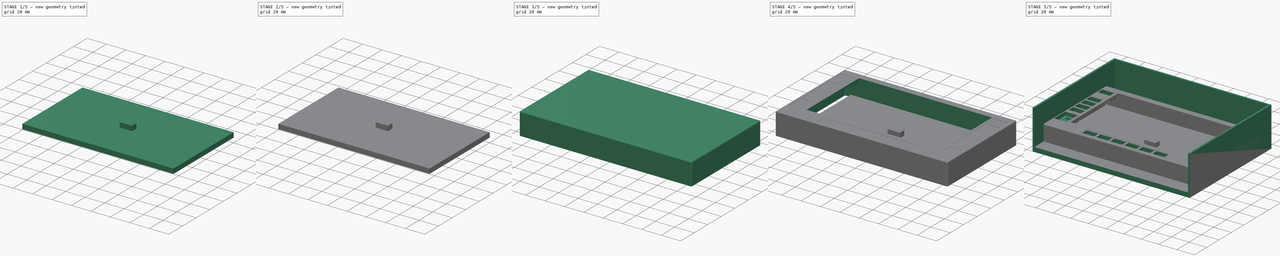
[diagram: build sequence overview — one tinted view per stage of 5, left to right]
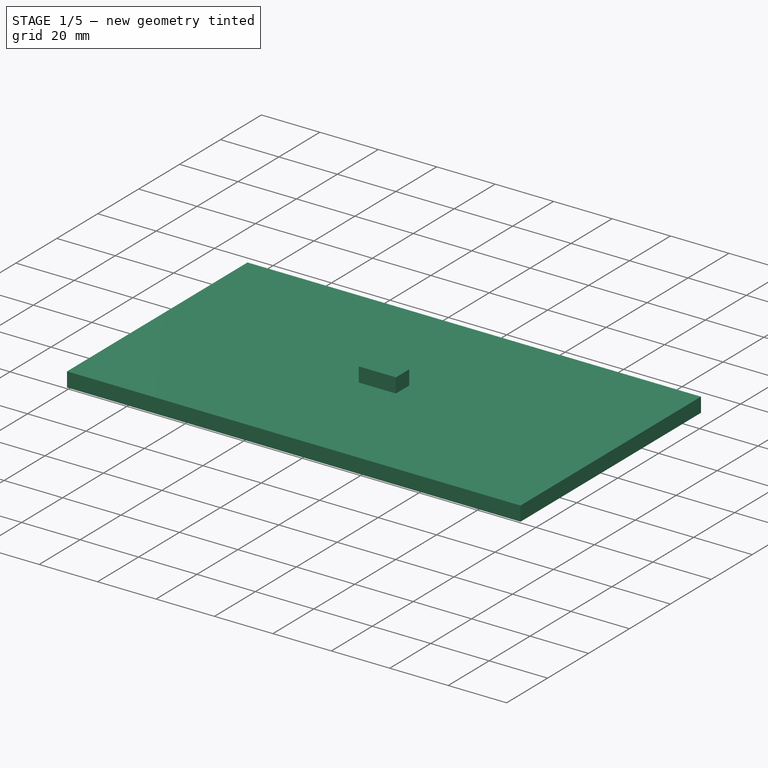
[diagram: stage 1 of 5 — iso view after this stage's code; geometry added in this stage tinted green]
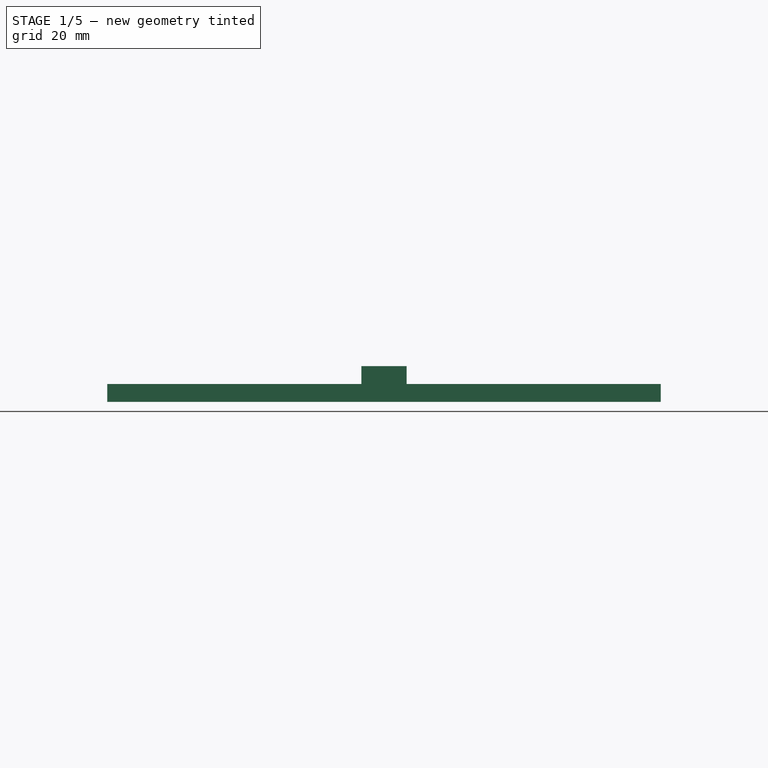
[diagram: stage 1 of 5 — front view after this stage's code; geometry added in this stage tinted green]
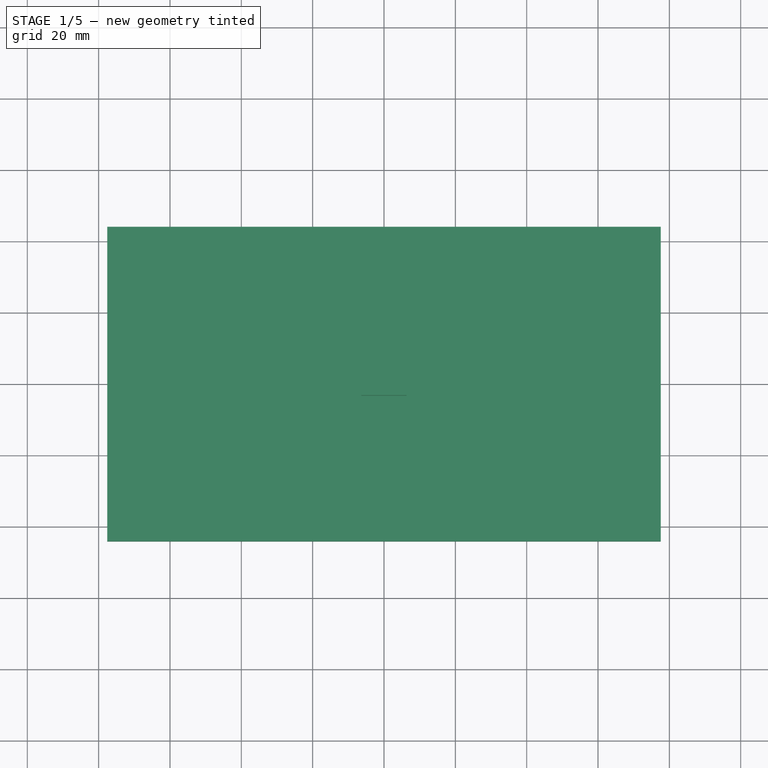
[diagram: stage 1 of 5 — top view after this stage's code; geometry added in this stage tinted green]
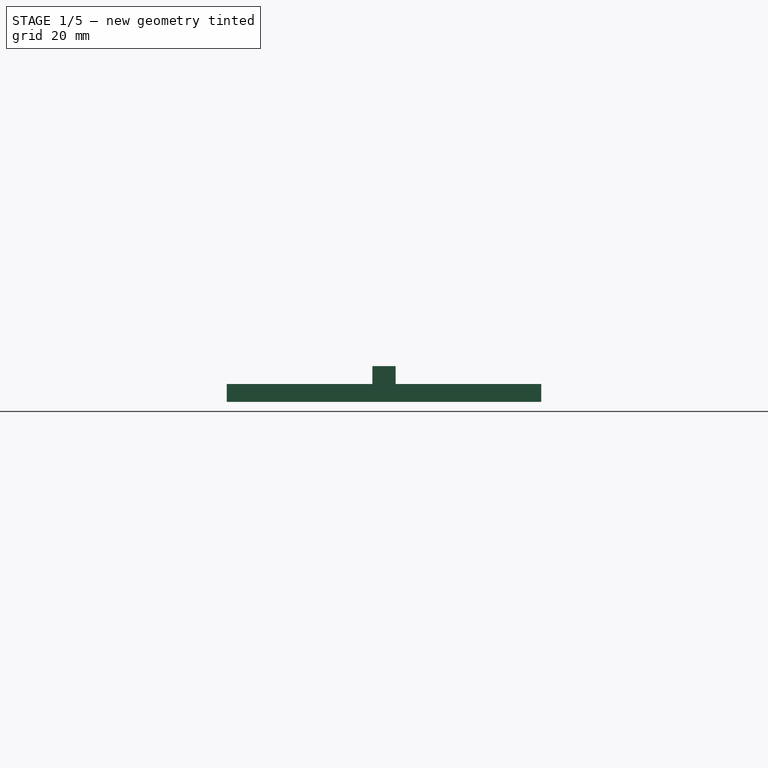
[diagram: stage 1 of 5 — right view after this stage's code; geometry added in this stage tinted green]
FCSTD DOCUMENT  (FreeCAD 1.0R39109 (Git))
Label: Double DIN Screen Motorized 6 Inch
License: All rights reserved
LicenseURL: https://en.wikipedia.org/wiki/All_rights_reserved
objects: Sketcher::SketchObject×18, PartDesign::Pad×9, PartDesign::Pocket×8, PartDesign::Body×5, PartDesign::Fillet×2
note: 98 computed .brp shape members not serialized (recipe doc carries the construction recipe); baked Part::Feature solids carry a one-line shape summary decoded from their .brp

FEATURE [PartDesign::Body] Body002  label="Standalone Button"
  AllowCompound = false
  Group = -> [Sketch009,Pad003,Sketch010,Pocket006,Sketch011,Pad004,Fillet001,Sketch012,Pad005]
  Origin = -> Origin002
  Placement = pos=(-78.9,38.6,15) rot=(0,0,1;0rad)
  Tip = -> Pad005
FEATURE [Sketcher::SketchObject] Sketch014  label="Vertical Button Base Sketch"
  ArcFitTolerance = 0
  FullyConstrained = true
  MakeInternals = false
  MapMode = 5
  sketch-geometry (4):
    g0: LineSegment StartX=6.35 StartY=3.25 StartZ=0 EndX=-6.35 EndY=3.25 EndZ=0
    g1: LineSegment StartX=-6.35 StartY=3.25 StartZ=0 EndX=-6.35 EndY=-3.25 EndZ=0
    g2: LineSegment StartX=-6.35 StartY=-3.25 StartZ=0 EndX=6.35 EndY=-3.25 EndZ=0
    g3: LineSegment StartX=6.35 StartY=-3.25 StartZ=0 EndX=6.35 EndY=3.25 EndZ=0
  constraints (10):
    c: Coincident(g0,g1)
    c: Coincident(g1,g2)
    c: Coincident(g2,g3)
    c: Coincident(g3,g0)
    c: Horizontal(g2)
    c: Vertical(g1)
    c: Symmetric(g0,g2,g-1)
    c: Symmetric(g0,g0,g-2)
    c: DistanceX(g0,g0) = 12.7
    c: DistanceY(g1,g1) = 6.5
FEATURE [PartDesign::Pad] Pad007  label="Vertical Button Base"
  Direction = (0,0,1)
  Length = 10
  Length2 = 10
  Profile = -> Sketch014
  ReferenceAxis = -> Sketch014 [N_Axis]
  Refine = true
  Suppressed = false
  Type = 0
FEATURE [Sketcher::SketchObject] Sketch015  label="Vertical Button Shell Sketch"
  ArcFitTolerance = 0
  FullyConstrained = true
  MakeInternals = false
  MapMode = 5
  Placement = pos=(0,0,0) rot=(1,0,0;3.14159rad)
  sketch-geometry (4):
    g0: LineSegment StartX=-5.35 StartY=2.25 StartZ=0 EndX=-5.35 EndY=-2.25 EndZ=0
    g1: LineSegment StartX=-5.35 StartY=-2.25 StartZ=0 EndX=5.35 EndY=-2.25 EndZ=0
    g2: LineSegment StartX=5.35 StartY=-2.25 StartZ=0 EndX=5.35 EndY=2.25 EndZ=0
    g3: LineSegment StartX=5.35 StartY=2.25 StartZ=0 EndX=-5.35 EndY=2.25 EndZ=0
  constraints (10):
    c: Coincident(g0,g1)
    c: Coincident(g1,g2)
    c: Coincident(g2,g3)
    c: Coincident(g3,g0)
    c: Vertical(g2)
    c: Horizontal(g1)
    c: DistanceX(g3,g3) = 10.7
    c: DistanceY(g0,g0) = 4.5
    c: Symmetric(g0,g0,g-1)
    c: Symmetric(g0,g2,g-2)
FEATURE [PartDesign::Pocket] Pocket007  label="Vertical Button Shell"
  BaseFeature = -> Pad007
  Direction = (0,1e-16,1)
  Length = 8.5
  Length2 = 5
  Profile = -> Sketch015
  ReferenceAxis = -> Sketch015 [N_Axis]
  Refine = true
  Suppressed = false
  Type = 0
FEATURE [Sketcher::SketchObject] Sketch016  label="Vertical Button Frill Sketch"
  ArcFitTolerance = 0
  AttachmentSupport = -> [Pocket007]
  ExternalGeometry = -> [Pocket007]
  FullyConstrained = true
  MakeInternals = false
  MapMode = 5
  Placement = pos=(0,0,0) rot=(1,0,0;3.14159rad)
  sketch-geometry (8):
    g0: LineSegment StartX=-6.35 StartY=3.25 StartZ=0 EndX=-7.85 EndY=3.25 EndZ=0
    g1: LineSegment StartX=-7.85 StartY=3.25 StartZ=0 EndX=-7.85 EndY=-3.25 EndZ=0
    g2: LineSegment StartX=-7.85 StartY=-3.25 StartZ=0 EndX=-6.35 EndY=-3.25 EndZ=0
    g3: LineSegment StartX=-6.35 StartY=-3.25 StartZ=0 EndX=-6.35 EndY=3.25 EndZ=0
    g4: LineSegment StartX=6.35 StartY=3.25 StartZ=0 EndX=7.85 EndY=3.25 EndZ=0
    g5: LineSegment StartX=7.85 StartY=3.25 StartZ=0 EndX=7.85 EndY=-3.25 EndZ=0
    g6: LineSegment StartX=7.85 StartY=-3.25 StartZ=0 EndX=6.35 EndY=-3.25 EndZ=0
    g7: LineSegment StartX=6.35 StartY=-3.25 StartZ=0 EndX=6.35 EndY=3.25 EndZ=0
  constraints (20):
    c: Coincident(g0,g1)
    c: Coincident(g1,g2)
    c: Coincident(g2,g3)
    c: Coincident(g3,g0)
    c: Horizontal(g0)
    c: Horizontal(g2)
    c: Vertical(g1)
    c: Coincident(g0,g-4)
    c: Coincident(g2,g-5)
    c: Coincident(g4,g5)
    c: Coincident(g5,g6)
    c: Coincident(g6,g7)
    c: Coincident(g7,g4)
    c: Horizontal(g4)
    c: Horizontal(g6)
    c: Vertical(g5)
    c: Coincident(g4,g-6)
    c: Coincident(g6,g-6)
    c: Equal(g0,g4)
    c: DistanceX(g0,g0) = 1.5
FEATURE [PartDesign::Pad] Pad008  label="Vertical Button Frill"
  BaseFeature = -> Pocket007
  Direction = (0,0,-1)
  Length = 2
  Length2 = 10
  Profile = -> Sketch016
  ReferenceAxis = -> Sketch016 [N_Axis]
  Reversed = true
  Suppressed = false
  Type = 0
FEATURE [PartDesign::Body] Body003  label="Vertical Button"
  AllowCompound = false
  Group = -> [Sketch014,Pad007,Sketch015,Pocket007,Sketch016,Pad008]
  Origin = -> Origin003
  Placement = pos=(-78.9,19.8,15) rot=(0,0,1;0rad)
  Tip = -> Pad008
FEATURE [Sketcher::SketchObject] Sketch017  label="Screen Base Sketch"
  ArcFitTolerance = 1e-06
  AttachmentSupport = -> [XY_Plane004]
  FullyConstrained = true
  MakeInternals = false
  MapMode = 5
  sketch-geometry (4):
    g0: LineSegment StartX=-77.6 StartY=44.1 StartZ=0 EndX=-77.6 EndY=-44.1 EndZ=0
    g1: LineSegment StartX=-77.6 StartY=-44.1 StartZ=0 EndX=77.6 EndY=-44.1 EndZ=0
    g2: LineSegment StartX=77.6 StartY=-44.1 StartZ=0 EndX=77.6 EndY=44.1 EndZ=0
    g3: LineSegment StartX=77.6 StartY=44.1 StartZ=0 EndX=-77.6 EndY=44.1 EndZ=0
  constraints (10):
    c: Coincident(g0,g1)
    c: Coincident(g1,g2)
    c: Coincident(g2,g3)
    c: Coincident(g3,g0)
    c: Vertical(g0)
    c: Horizontal(g1)
    c: DistanceX(g3,g3) = 155.2
    c: DistanceY(g0,g0) = 88.2
    c: Symmetric(g2,g1,g-1)
    c: Symmetric(g2,g0,g-2)
FEATURE [PartDesign::Pad] Pad009  label="Screen Model Base"
  Direction = (0,0,1)
  Length = 5
  Length2 = 10
  Profile = -> Sketch017
  ReferenceAxis = -> Sketch017 [N_Axis]
  Suppressed = false
  Type = 0
FEATURE [Sketcher::SketchObject] Sketch018  label="TFT Sketch"
  ArcFitTolerance = 1e-06
  AttachmentSupport = -> [Pad009]
  ExternalGeometry = -> [Pad009]
  FullyConstrained = true
  MakeInternals = false
  MapMode = 5
  Placement = pos=(0,0,5) rot=(0,0,1;0rad)
  sketch-geometry (4):
    g0: LineSegment StartX=-68.75 StartY=42.24 StartZ=0 EndX=-68.75 EndY=-35.96 EndZ=0
    g1: LineSegment StartX=-68.75 StartY=-35.96 StartZ=0 EndX=70.75 EndY=-35.96 EndZ=0
    g2: LineSegment StartX=70.75 StartY=-35.96 StartZ=0 EndX=70.75 EndY=42.24 EndZ=0
    g3: LineSegment StartX=70.75 StartY=42.24 StartZ=0 EndX=-68.75 EndY=42.24 EndZ=0
  constraints (12):
    c: Coincident(g0,g1)
    c: Coincident(g1,g2)
    c: Coincident(g2,g3)
    c: Coincident(g3,g0)
    c: Vertical(g0)
    c: Vertical(g2)
    c: Horizontal(g1)
    c: Horizontal(g3)
    c: DistanceX(g3,g3) = 139.5
    c: DistanceY(g0,g0) = 78.2
    c: DistanceY(g2,g-6) = 1.86
    c: DistanceX(g-4,g0) = 8.85
FEATURE [PartDesign::Body] Body004  label="Screen Model"
  AllowCompound = false
  Group = -> [Sketch017,Pad009,Sketch018]
  Origin = -> Origin004
  Placement = pos=(0,4.5,12) rot=(0,0,1;0rad)
  Tip = -> Pad009
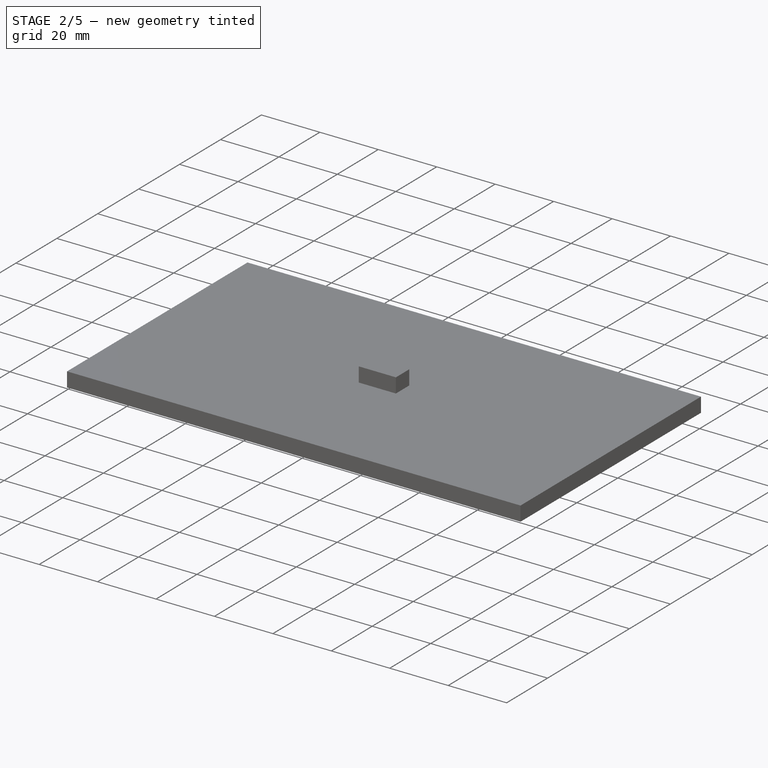
[diagram: stage 2 of 5 — iso view after this stage's code; geometry added in this stage tinted green]
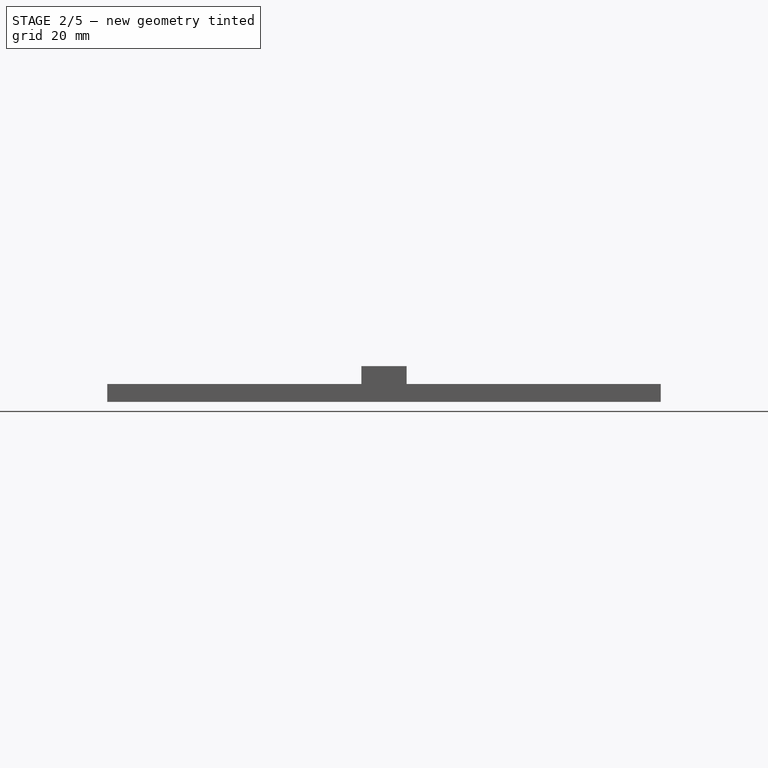
[diagram: stage 2 of 5 — front view after this stage's code; geometry added in this stage tinted green]
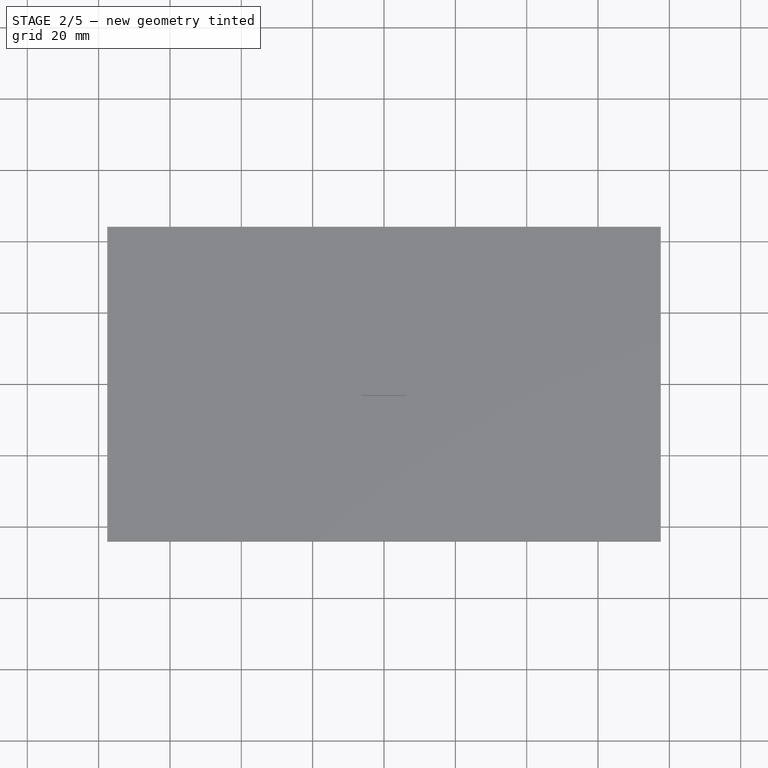
[diagram: stage 2 of 5 — top view after this stage's code; geometry added in this stage tinted green]
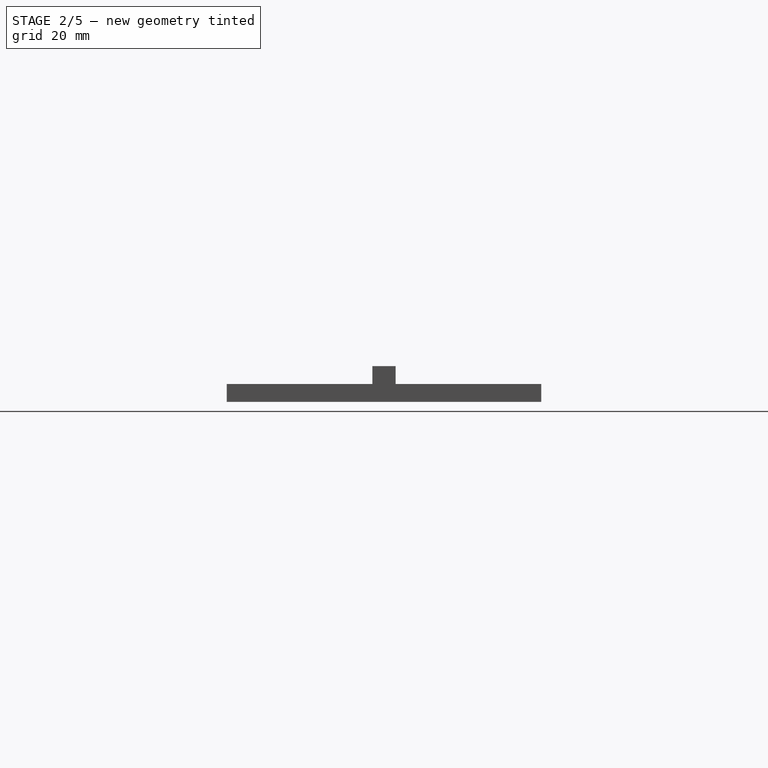
[diagram: stage 2 of 5 — right view after this stage's code; geometry added in this stage tinted green]
FEATURE [PartDesign::Body] Body001  label="Screen Panel"
  AllowCompound = false
  Group = -> [Sketch002,Pad001,Fillet,Sketch003,Pocket001,Sketch004,Pocket002,Sketch005,Pad002,Sketch006,Pocket003,Sketch007,Pocket004,Sketch008,Pocket005]
  Origin = -> Origin001
  Tip = -> Pocket005
FEATURE [Sketcher::SketchObject] Sketch009  label="Standalone Button Base Sketch"
  ArcFitTolerance = 0
  FullyConstrained = true
  MakeInternals = false
  MapMode = 5
  sketch-geometry (4):
    g0: LineSegment StartX=-6.35 StartY=3.25 StartZ=0 EndX=6.35 EndY=3.25 EndZ=0
    g1: LineSegment StartX=6.35 StartY=3.25 StartZ=0 EndX=6.35 EndY=-3.25 EndZ=0
    g2: LineSegment StartX=6.35 StartY=-3.25 StartZ=0 EndX=-6.35 EndY=-3.25 EndZ=0
    g3: LineSegment StartX=-6.35 StartY=-3.25 StartZ=0 EndX=-6.35 EndY=3.25 EndZ=0
  constraints (10):
    c: Coincident(g0,g1)
    c: Coincident(g1,g2)
    c: Coincident(g2,g3)
    c: Coincident(g3,g0)
    c: Horizontal(g2)
    c: Vertical(g1)
    c: Symmetric(g0,g0,g-2)
    c: Symmetric(g0,g2,g-1)
    c: DistanceX(g0,g0) = 12.7
    c: DistanceY(g3,g3) = 6.5
FEATURE [PartDesign::Pad] Pad003  label="Standalone Button Base"
  Direction = (0,0,1)
  Length = 9.5
  Length2 = 10
  Profile = -> Sketch009
  ReferenceAxis = -> Sketch009 [N_Axis]
  Suppressed = false
  Type = 0
FEATURE [Sketcher::SketchObject] Sketch010  label="Standalone Button Shell Sketch"
  ArcFitTolerance = 0
  ExternalGeometry = -> [Pad003]
  FullyConstrained = true
  MakeInternals = false
  MapMode = 5
  Placement = pos=(0,0,0) rot=(1,0,0;3.14159rad)
  sketch-geometry (4):
    g0: LineSegment StartX=-5.35 StartY=2.25 StartZ=0 EndX=5.35 EndY=2.25 EndZ=0
    g1: LineSegment StartX=5.35 StartY=2.25 StartZ=0 EndX=5.35 EndY=-2.25 EndZ=0
    g2: LineSegment StartX=5.35 StartY=-2.25 StartZ=0 EndX=-5.35 EndY=-2.25 EndZ=0
    g3: LineSegment StartX=-5.35 StartY=-2.25 StartZ=0 EndX=-5.35 EndY=2.25 EndZ=0
  constraints (10):
    c: Coincident(g0,g1)
    c: Coincident(g1,g2)
    c: Coincident(g2,g3)
    c: Coincident(g3,g0)
    c: Horizontal(g2)
    c: Vertical(g1)
    c: DistanceY(g0,g-6) = 1
    c: DistanceX(g0,g-6) = 1
    c: Symmetric(g0,g0,g-2)
    c: Symmetric(g0,g2,g-1)
FEATURE [PartDesign::Pocket] Pocket006  label="Standalone Button Shell"
  BaseFeature = -> Pad003
  Direction = (0,1e-16,1)
  Length = 8.5
  Length2 = 5
  Profile = -> Sketch010
  ReferenceAxis = -> Sketch010 [N_Axis]
  Suppressed = false
  Type = 0
FEATURE [Sketcher::SketchObject] Sketch011  label="Standalone Button Frill Sketch"
  ArcFitTolerance = 0
  ExternalGeometry = -> [Pocket006]
  FullyConstrained = true
  MakeInternals = false
  MapMode = 5
  Placement = pos=(0,0,0) rot=(1,0,0;3.14159rad)
  sketch-geometry (8):
    g0: LineSegment StartX=-6.35 StartY=3.25 StartZ=0 EndX=-6.35 EndY=-3.25 EndZ=0
    g1: LineSegment StartX=-6.35 StartY=-3.25 StartZ=0 EndX=6.35 EndY=-3.25 EndZ=0
    g2: LineSegment StartX=6.35 StartY=-3.25 StartZ=0 EndX=6.35 EndY=3.25 EndZ=0
    g3: LineSegment StartX=6.35 StartY=3.25 StartZ=0 EndX=-6.35 EndY=3.25 EndZ=0
    g4: LineSegment StartX=-7.85 StartY=5.25 StartZ=0 EndX=-7.85 EndY=-5.25 EndZ=0
    g5: LineSegment StartX=-7.85 StartY=-5.25 StartZ=0 EndX=7.85 EndY=-5.25 EndZ=0
    g6: LineSegment StartX=7.85 StartY=-5.25 StartZ=0 EndX=7.85 EndY=5.25 EndZ=0
    g7: LineSegment StartX=7.85 StartY=5.25 StartZ=0 EndX=-7.85 EndY=5.25 EndZ=0
  constraints (20):
    c: Coincident(g0,g1)
    c: Coincident(g1,g2)
    c: Coincident(g2,g3)
    c: Coincident(g3,g0)
    c: Vertical(g0)
    c: Vertical(g2)
    c: Horizontal(g1)
    c: Horizontal(g3)
    c: Coincident(g0,g-4)
    c: Coincident(g1,g-10)
    c: Coincident(g4,g5)
    c: Coincident(g5,g6)
    c: Coincident(g6,g7)
    c: Coincident(g7,g4)
    c: Vertical(g6)
    c: Horizontal(g5)
    c: Symmetric(g4,g6,g-2)
    c: Symmetric(g4,g4,g-1)
    c: DistanceY(g0,g4) = 2
    c: DistanceX(g4,g0) = 1.5
FEATURE [PartDesign::Pad] Pad004  label="Standalone Button Frill"
  BaseFeature = -> Pocket006
  Direction = (0,-1e-16,-1)
  Length = 2
  Length2 = 10
  Profile = -> Sketch011
  ReferenceAxis = -> Sketch011 [N_Axis]
  Refine = true
  Reversed = true
  Suppressed = false
  Type = 0
FEATURE [PartDesign::Fillet] Fillet001  label="Standalone Button Fillet"
  Base = -> Pad004 [Edge3,Edge13,Edge14,Edge15]
  BaseFeature = -> Pad004
  Radius = 0.4
  Refine = true
  SupportTransform = false
  Suppressed = false
  UseAllEdges = false
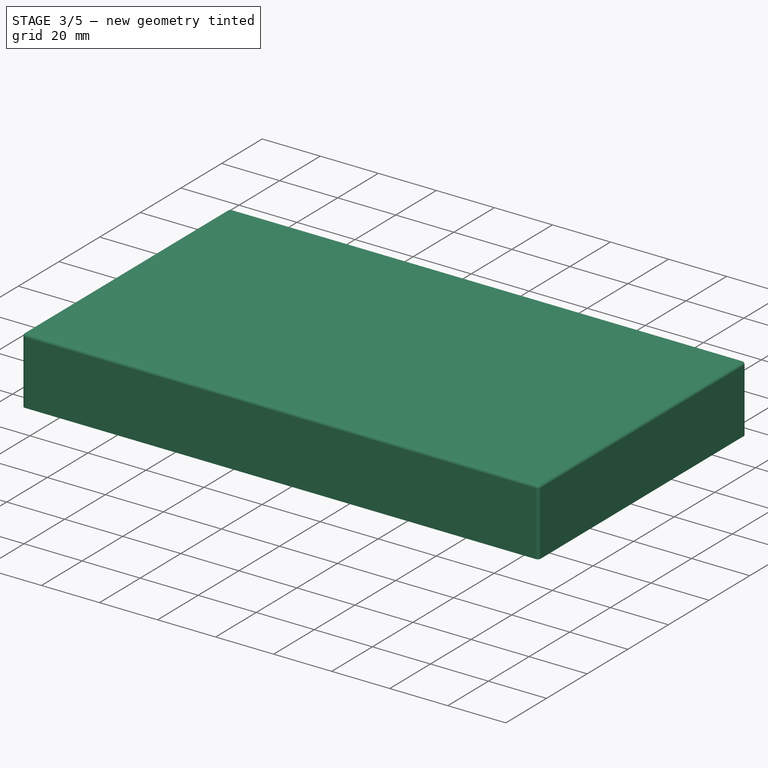
[diagram: stage 3 of 5 — iso view after this stage's code; geometry added in this stage tinted green]
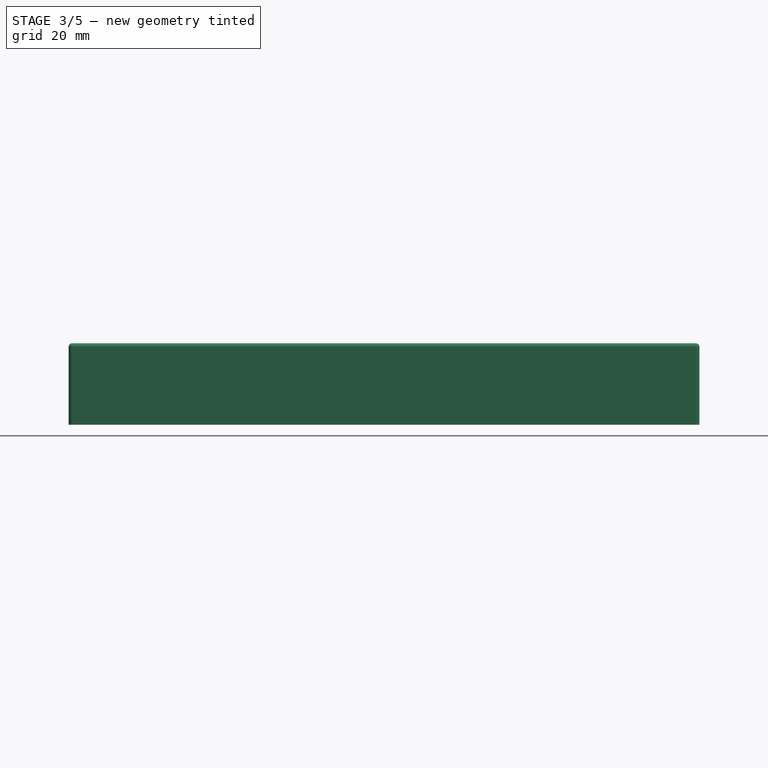
[diagram: stage 3 of 5 — front view after this stage's code; geometry added in this stage tinted green]
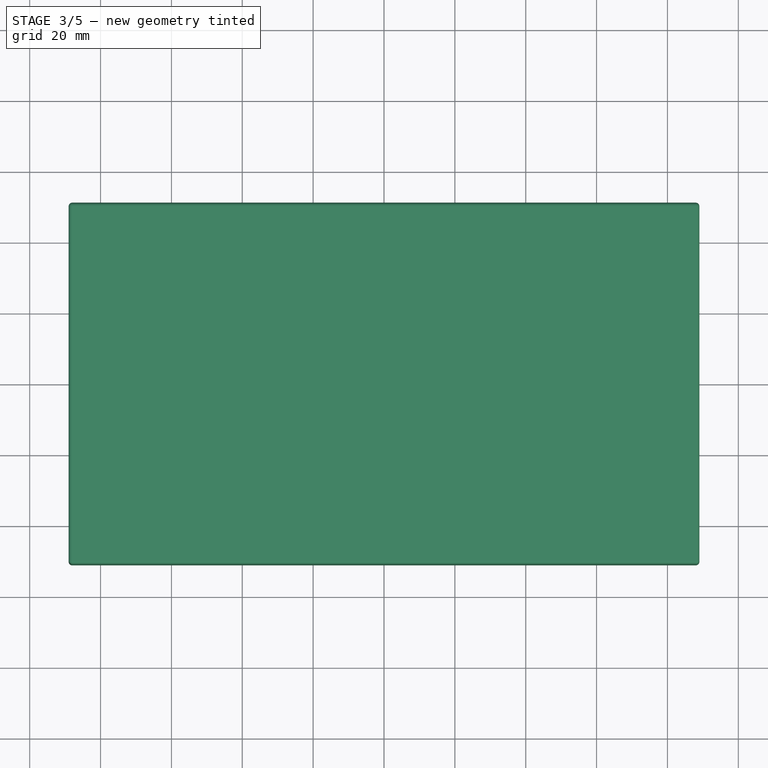
[diagram: stage 3 of 5 — top view after this stage's code; geometry added in this stage tinted green]
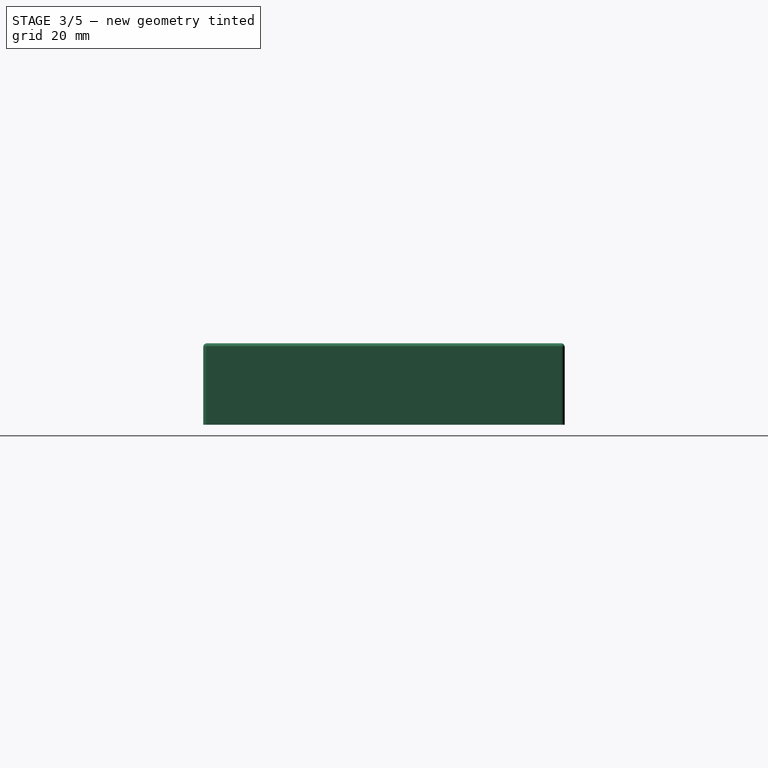
[diagram: stage 3 of 5 — right view after this stage's code; geometry added in this stage tinted green]
FEATURE [PartDesign::Body] Body  label="Screen Base"
  AllowCompound = false
  Group = -> [Sketch,Pad,Sketch001,Pocket]
  Origin = -> Origin
  Tip = -> Pocket
FEATURE [Sketcher::SketchObject] Sketch002  label="Screen Panel Base Sketch"
  ArcFitTolerance = 0
  FullyConstrained = true
  MakeInternals = false
  MapMode = 5
  sketch-geometry (14):
    g0: LineSegment [constr] StartX=-89 StartY=51 StartZ=0 EndX=89 EndY=51 EndZ=0
    g1: LineSegment [constr] StartX=89 StartY=51 StartZ=0 EndX=89 EndY=-51 EndZ=0
    g2: LineSegment [constr] StartX=89 StartY=-51 StartZ=0 EndX=-89 EndY=-51 EndZ=0
    g3: LineSegment [constr] StartX=-89 StartY=-51 StartZ=0 EndX=-89 EndY=51 EndZ=0
    g4: LineSegment StartX=-89 StartY=50 StartZ=0 EndX=-89 EndY=-50 EndZ=0
    g5: LineSegment StartX=89 StartY=50 StartZ=0 EndX=89 EndY=-50 EndZ=0
    g6: LineSegment StartX=-88 StartY=51 StartZ=0 EndX=88 EndY=51 EndZ=0
    g7: LineSegment StartX=-88 StartY=-51 StartZ=0 EndX=88 EndY=-51 EndZ=0
    g8: ArcOfCircle CenterX=-88 CenterY=50 CenterZ=0 NormalX=0 NormalY=0 NormalZ=1 AngleXU=0 Radius=1 StartAngle=1.5708 EndAngle=3.14159
    g9: ArcOfCircle CenterX=88 CenterY=50 CenterZ=0 NormalX=0 NormalY=0 NormalZ=1 AngleXU=0 Radius=1 StartAngle=-2.7e-15 EndAngle=1.5708
    g10: ArcOfCircle CenterX=-88 CenterY=-50 CenterZ=0 NormalX=0 NormalY=0 NormalZ=1 AngleXU=0 Radius=1 StartAngle=3.14159 EndAngle=4.71239
    g11: ArcOfCircle CenterX=88 CenterY=-50 CenterZ=0 NormalX=0 NormalY=0 NormalZ=1 AngleXU=0 Radius=1 StartAngle=4.71239 EndAngle=6.28319
    g12: LineSegment [constr] StartX=88 StartY=-50 StartZ=0 EndX=89 EndY=-50 EndZ=0
    g13: LineSegment [constr] StartX=88 StartY=-50 StartZ=0 EndX=88 EndY=-51 EndZ=0
  constraints (38):
    c: Coincident(g0,g1)
    c: Coincident(g1,g2)
    c: Coincident(g2,g3)
    c: Coincident(g3,g0)
    c: Horizontal(g2)
    c: Vertical(g1)
    c: Symmetric(g0,g0,g-2)
    c: Symmetric(g0,g2,g-1)
    c: DistanceY(g3,g3) = 102
    c: DistanceX(g0,g0) = 178
    c: PointOnObject(g4,g3)
    c: PointOnObject(g5,g1)
    c: PointOnObject(g6,g0)
    c: PointOnObject(g7,g2)
    c: Symmetric(g7,g7,g-2)
    c: Equal(g7,g6)
    c: Symmetric(g6,g6,g-2)
    c: Symmetric(g4,g4,g-1)
    c: Symmetric(g5,g5,g-1)
    c: Equal(g4,g5)
    c: Coincident(g8,g4)
    c: Coincident(g8,g6)
    c: Angle(g8) = 1.5708
    c: Coincident(g9,g6)
    c: Coincident(g9,g5)
    c: Angle(g9) = 1.5708
    c: Coincident(g10,g4)
    c: Coincident(g10,g7)
    c: Equal(g10,g8)
    c: Coincident(g11,g7)
    c: Coincident(g11,g5)
    c: Equal(g11,g8)
    c: Coincident(g12,g11)
    c: Coincident(g12,g5)
    c: Horizontal(g12)
    c: Coincident(g13,g11)
    c: Coincident(g13,g7)
    c: Radius(g9) = 1
FEATURE [PartDesign::Pad] Pad001  label="Screen Panel Base"
  Direction = (0,0,1)
  Length = 23
  Length2 = 10
  Profile = -> Sketch002
  ReferenceAxis = -> Sketch002 [N_Axis]
  Suppressed = false
  Type = 0
FEATURE [PartDesign::Fillet] Fillet  label="Screen Panel Base Fillet"
  Base = -> Pad001 [Edge7]
  BaseFeature = -> Pad001
  Radius = 1
  SupportTransform = false
  Suppressed = false
  UseAllEdges = false
FEATURE [Sketcher::SketchObject] Sketch012  label="Standalone Button Trigger Cross Sketch"
  ArcFitTolerance = 0
  ExternalGeometry = -> [Fillet001]
  FullyConstrained = true
  MakeInternals = false
  MapMode = 5
  Placement = pos=(0,0,8.5) rot=(1,0,0;3.14159rad)
  sketch-geometry (19):
    g0: LineSegment StartX=-5.35 StartY=0.5 StartZ=0 EndX=-0.866025 EndY=0.5 EndZ=0
    g1: LineSegment StartX=-5.35 StartY=-0.5 StartZ=0 EndX=-0.866025 EndY=-0.5 EndZ=0
    g2: LineSegment StartX=-5.35 StartY=0.5 StartZ=0 EndX=-5.35 EndY=-0.5 EndZ=0
    g3: LineSegment [constr] StartX=-0.866025 StartY=0.5 StartZ=0 EndX=-0.866025 EndY=-0.5 EndZ=0
    g4: Circle [constr] CenterX=0 CenterY=0 CenterZ=0 NormalX=0 NormalY=0 NormalZ=1 AngleXU=0 Radius=1
    g5: LineSegment StartX=5.35 StartY=0.5 StartZ=0 EndX=5.35 EndY=-0.5 EndZ=0
    g6: LineSegment StartX=5.35 StartY=-0.5 StartZ=0 EndX=0.866025 EndY=-0.5 EndZ=0
    g7: LineSegment StartX=5.35 StartY=0.5 StartZ=0 EndX=0.866025 EndY=0.5 EndZ=0
    g8: LineSegment StartX=-0.5 StartY=2.25 StartZ=0 EndX=0.5 EndY=2.25 EndZ=0
    g9: LineSegment StartX=0.5 StartY=2.25 StartZ=0 EndX=0.5 EndY=0.866025 EndZ=0
    g10: LineSegment StartX=-0.5 StartY=2.25 StartZ=0 EndX=-0.5 EndY=0.866025 EndZ=0
    g11: LineSegment [constr] StartX=-0.5 StartY=0.866025 StartZ=0 EndX=0.5 EndY=0.866025 EndZ=0
    g12: LineSegment StartX=-0.5 StartY=-2.25 StartZ=0 EndX=0.5 EndY=-2.25 EndZ=0
    g13: LineSegment StartX=-0.5 StartY=-2.25 StartZ=0 EndX=-0.5 EndY=-0.866025 EndZ=0
    g14: LineSegment StartX=0.5 StartY=-2.25 StartZ=0 EndX=0.5 EndY=-0.866025 EndZ=0
    g15: ArcOfCircle CenterX=0 CenterY=0 CenterZ=0 NormalX=0 NormalY=0 NormalZ=1 AngleXU=0 Radius=1 StartAngle=2.0944 EndAngle=2.61799
    g16: ArcOfCircle CenterX=0 CenterY=0 CenterZ=0 NormalX=0 NormalY=0 NormalZ=1 AngleXU=0 Radius=1 StartAngle=0.523599 EndAngle=1.0472
    g17: ArcOfCircle CenterX=0 CenterY=0 CenterZ=0 NormalX=0 NormalY=0 NormalZ=1 AngleXU=0 Radius=1 StartAngle=5.23599 EndAngle=5.75959
    g18: ArcOfCircle CenterX=0 CenterY=0 CenterZ=0 NormalX=0 NormalY=0 NormalZ=1 AngleXU=0 Radius=1 StartAngle=3.66519 EndAngle=4.18879
  constraints (54):
    c: PointOnObject(g0,g-3)
    c: Horizontal(g0)
    c: PointOnObject(g1,g-3)
    c: Horizontal(g1)
    c: Coincident(g2,g0)
    c: Coincident(g2,g1)
    c: DistanceY(g2,g2) = 1
    c: Coincident(g3,g0)
    c: Coincident(g3,g1)
    c: Symmetric(g0,g1,g-1)
    c: Coincident(g4,g-1)
    c: Diameter(g4) = 2
    c: PointOnObject(g0,g4)
    c: PointOnObject(g5,g-5)
    c: PointOnObject(g5,g-5)
    c: Coincident(g6,g5)
    c: PointOnObject(g6,g4)
    c: Horizontal(g6)
    c: Coincident(g7,g5)
    c: Horizontal(g7)
    c: Symmetric(g7,g6,g-1)
    c: Equal(g5,g3)
    c: PointOnObject(g8,g-4)
    c: PointOnObject(g8,g-4)
    c: Coincident(g9,g8)
    c: PointOnObject(g9,g4)
    c: Vertical(g9)
    c: Coincident(g10,g8)
    c: Vertical(g10)
    c: Symmetric(g10,g9,g-2)
    c: Coincident(g11,g10)
    c: Coincident(g11,g9)
    c: Equal(g11,g3)
    c: PointOnObject(g12,g-6)
    c: PointOnObject(g12,g-6)
    c: Coincident(g13,g12)
    c: PointOnObject(g13,g4)
    c: Vertical(g13)
    c: Coincident(g14,g12)
    c: Vertical(g14)
    c: Symmetric(g14,g13,g-2)
    c: Equal(g12,g11)
    c: Coincident(g15,g4)
    c: Coincident(g15,g0)
    c: PointOnObject(g15,g10)
    c: Coincident(g16,g4)
    c: Coincident(g16,g9)
    c: PointOnObject(g16,g7)
    c: Coincident(g17,g4)
    c: Coincident(g17,g6)
    c: PointOnObject(g17,g14)
    c: Coincident(g18,g4)
    c: Coincident(g18,g1)
    c: PointOnObject(g18,g13)
FEATURE [PartDesign::Pad] Pad005  label="Standalone Button Trigger Cross"
  BaseFeature = -> Fillet001
  Direction = (0,-1e-16,-1)
  Length = 8
  Length2 = 10
  Profile = -> Sketch012
  ReferenceAxis = -> Sketch012 [N_Axis]
  Refine = true
  Suppressed = false
  Type = 0
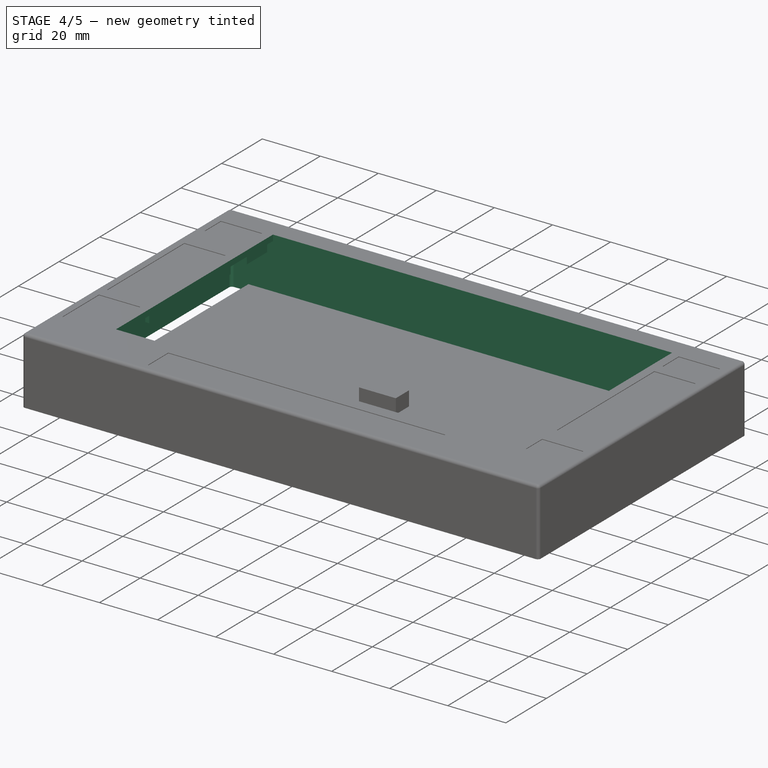
[diagram: stage 4 of 5 — iso view after this stage's code; geometry added in this stage tinted green]
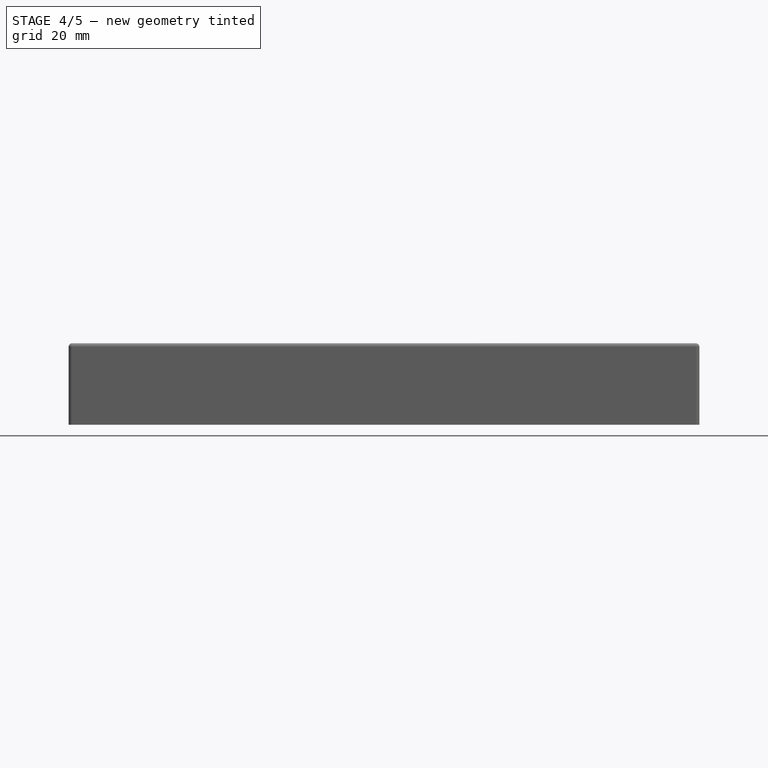
[diagram: stage 4 of 5 — front view after this stage's code; geometry added in this stage tinted green]
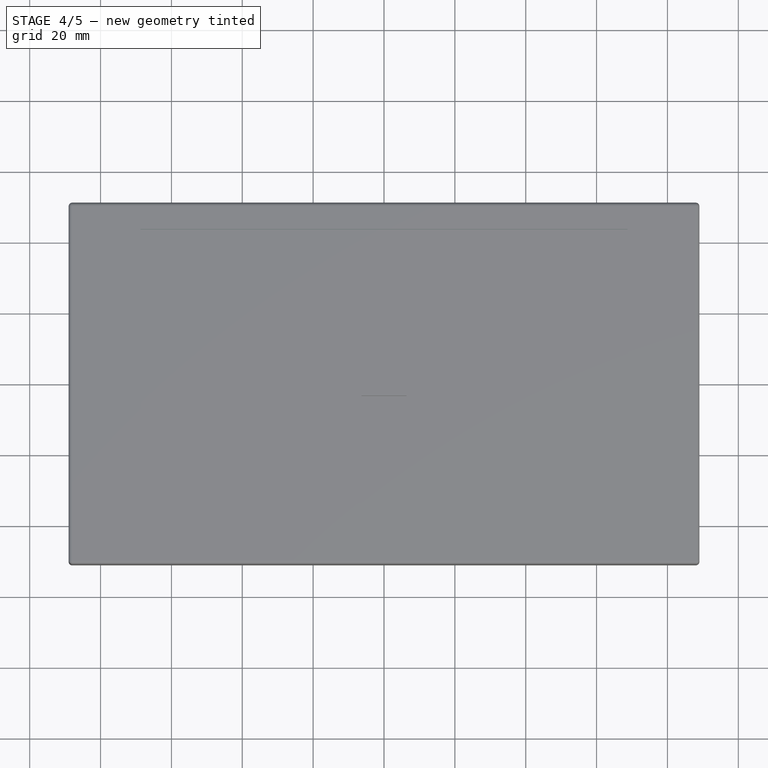
[diagram: stage 4 of 5 — top view after this stage's code; geometry added in this stage tinted green]
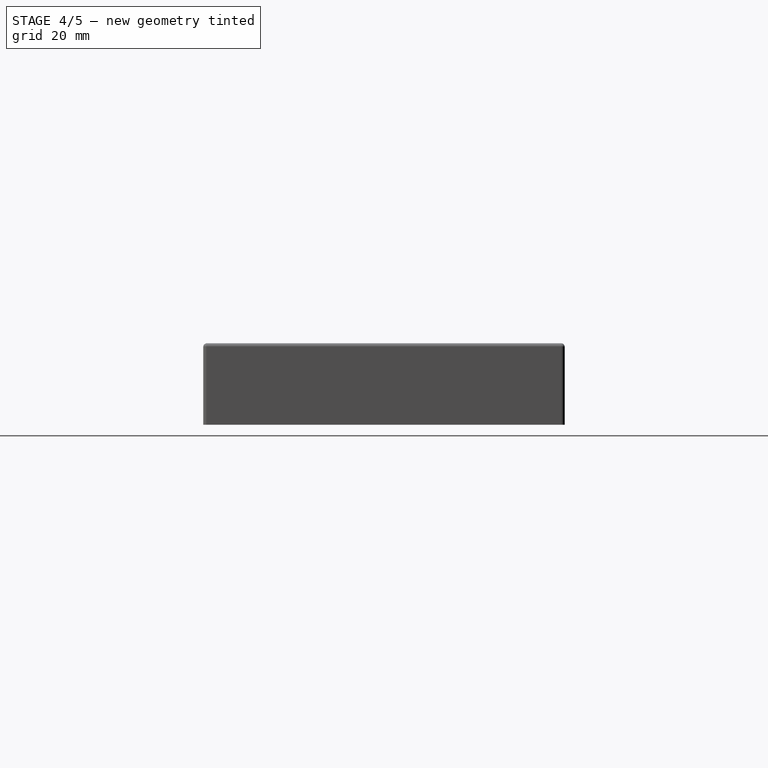
[diagram: stage 4 of 5 — right view after this stage's code; geometry added in this stage tinted green]
FEATURE [Sketcher::SketchObject] Sketch003  label="Screen Panel Shell Sketch"
  ArcFitTolerance = 0
  ExternalGeometry = -> [Fillet]
  FullyConstrained = true
  MakeInternals = false
  MapMode = 5
  Placement = pos=(0,0,0) rot=(1,0,0;3.14159rad)
  sketch-geometry (18):
    g0: LineSegment StartX=-87 StartY=-48 StartZ=0 EndX=-87 EndY=48 EndZ=0
    g1: LineSegment StartX=-86 StartY=49 StartZ=0 EndX=86 EndY=49 EndZ=0
    g2: LineSegment StartX=87 StartY=48 StartZ=0 EndX=87 EndY=-48 EndZ=0
    g3: LineSegment StartX=86 StartY=-49 StartZ=0 EndX=-86 EndY=-49 EndZ=0
    g4: ArcOfCircle CenterX=-86 CenterY=48 CenterZ=0 NormalX=0 NormalY=0 NormalZ=1 AngleXU=0 Radius=1 StartAngle=1.5708 EndAngle=3.14159
    g5: LineSegment [constr] StartX=-86 StartY=49 StartZ=0 EndX=-86 EndY=48 EndZ=0
    g6: LineSegment [constr] StartX=-86 StartY=48 StartZ=0 EndX=-87 EndY=48 EndZ=0
    g7: ArcOfCircle CenterX=86 CenterY=-48 CenterZ=0 NormalX=0 NormalY=0 NormalZ=1 AngleXU=0 Radius=1 StartAngle=4.71239 EndAngle=6.28319
    g8: LineSegment [constr] StartX=86 StartY=-49 StartZ=0 EndX=86 EndY=-48 EndZ=0
    g9: LineSegment [constr] StartX=86 StartY=-48 StartZ=0 EndX=87 EndY=-48 EndZ=0
    g10: ArcOfCircle CenterX=86 CenterY=48 CenterZ=0 NormalX=0 NormalY=0 NormalZ=1 AngleXU=0 Radius=1 StartAngle=-2.7e-15 EndAngle=1.5708
    g11: LineSegment [constr] StartX=86 StartY=49 StartZ=0 EndX=86 EndY=48 EndZ=0
    g12: LineSegment [constr] StartX=86 StartY=48 StartZ=0 EndX=87 EndY=48 EndZ=0
    g13: ArcOfCircle CenterX=-86 CenterY=-48 CenterZ=0 NormalX=0 NormalY=0 NormalZ=1 AngleXU=0 Radius=1 StartAngle=3.14159 EndAngle=4.71239
    g14: LineSegment [constr] StartX=-87 StartY=-48 StartZ=0 EndX=-86 EndY=-48 EndZ=0
    g15: LineSegment [constr] StartX=-86 StartY=-48 StartZ=0 EndX=-86 EndY=-49 EndZ=0
    g16: LineSegment [constr] StartX=-87 StartY=48 StartZ=0 EndX=-89 EndY=48 EndZ=0
    g17: LineSegment [constr] StartX=-86 StartY=49 StartZ=0 EndX=-86 EndY=51 EndZ=0
  constraints (45):
    c: Equal(g3,g1)
    c: Symmetric(g1,g1,g-2)
    c: Symmetric(g3,g3,g-2)
    c: Symmetric(g0,g0,g-1)
    c: Symmetric(g2,g2,g-1)
    c: Coincident(g4,g0)
    c: Coincident(g4,g1)
    c: Coincident(g5,g1)
    c: Coincident(g5,g4)
    c: Coincident(g6,g4)
    c: Coincident(g6,g0)
    c: Horizontal(g6)
    c: Vertical(g5)
    c: Symmetric(g2,g0,g-2)
    c: Coincident(g7,g3)
    c: Coincident(g7,g2)
    c: Equal(g7,g4)
    c: Coincident(g8,g3)
    c: Coincident(g8,g7)
    c: Coincident(g9,g7)
    c: Coincident(g9,g2)
    c: Horizontal(g9)
    c: Coincident(g10,g1)
    c: Coincident(g10,g2)
    c: Equal(g4,g10)
    c: Coincident(g11,g1)
    c: Coincident(g11,g10)
    c: Coincident(g12,g10)
    c: Coincident(g12,g2)
    c: Coincident(g13,g0)
    c: Coincident(g13,g3)
    c: Coincident(g14,g0)
    c: Coincident(g14,g13)
    c: Horizontal(g14)
    c: Coincident(g15,g13)
    c: Coincident(g15,g3)
    c: Coincident(g16,g0)
    c: PointOnObject(g16,g-3)
    c: Horizontal(g16)
    c: DistanceX(g16,g16) = 2
    c: Coincident(g17,g1)
    c: PointOnObject(g17,g-5)
    c: Vertical(g17)
    c: Equal(g17,g16)
    c: Equal(g4,g-4)
FEATURE [PartDesign::Pocket] Pocket001  label="Screen Panel Shell"
  BaseFeature = -> Fillet
  Direction = (0,1e-16,1)
  Length = 21
  Length2 = 5
  Profile = -> Sketch003
  ReferenceAxis = -> Sketch003 [N_Axis]
  Suppressed = false
  Type = 0
FEATURE [Sketcher::SketchObject] Sketch004  label="Screen Display Cut Sketch"
  ArcFitTolerance = 0
  ExternalGeometry = -> [Pocket001]
  FullyConstrained = true
  MakeInternals = false
  MapMode = 5
  Placement = pos=(0,0,23) rot=(0,0,1;0rad)
  sketch-geometry (10):
    g0: LineSegment [constr] StartX=-76.4 StartY=46.5 StartZ=0 EndX=78.8 EndY=46.5 EndZ=0
    g1: LineSegment [constr] StartX=78.8 StartY=46.5 StartZ=0 EndX=78.8 EndY=-41.7 EndZ=0
    g2: LineSegment [constr] StartX=78.8 StartY=-41.7 StartZ=0 EndX=-76.4 EndY=-41.7 EndZ=0
    g3: LineSegment [constr] StartX=-76.4 StartY=-41.7 StartZ=0 EndX=-76.4 EndY=46.5 EndZ=0
    g4: LineSegment [constr] StartX=-76.4 StartY=-41.7 StartZ=0 EndX=-76.4 EndY=-51 EndZ=0
    g5: LineSegment StartX=-68.76 StartY=43.556 StartZ=0 EndX=68.76 EndY=43.556 EndZ=0
    g6: LineSegment StartX=68.76 StartY=43.556 StartZ=0 EndX=68.76 EndY=-33.676 EndZ=0
    g7: LineSegment StartX=68.76 StartY=-33.676 StartZ=0 EndX=-68.76 EndY=-33.676 EndZ=0
    g8: LineSegment StartX=-68.76 StartY=-33.676 StartZ=0 EndX=-68.76 EndY=43.556 EndZ=0
    g9: LineSegment [constr] StartX=-68.76 StartY=43.556 StartZ=0 EndX=-76.4 EndY=43.556 EndZ=0
  constraints (29):
    c: Coincident(g0,g1)
    c: Coincident(g1,g2)
    c: Coincident(g2,g3)
    c: Coincident(g3,g0)
    c: Horizontal(g0)
    c: Vertical(g1)
    c: Vertical(g3)
    c: DistanceY(g3,g3) = 88.2
    c: DistanceX(g0,g0) = 155.2
    c: Coincident(g4,g2)
    c: PointOnObject(g4,g-3)
    c: Vertical(g4)
    c: DistanceY(g4,g4) = 9.3
    c: Coincident(g5,g6)
    c: Coincident(g6,g7)
    c: Coincident(g7,g8)
    c: Coincident(g8,g5)
    c: Horizontal(g5)
    c: Vertical(g6)
    c: Vertical(g8)
    c: DistanceX(g5,g5) = 137.52
    c: DistanceY(g8,g8) = 77.232
    c: Coincident(g9,g5)
    c: PointOnObject(g9,g3)
    c: Horizontal(g9)
    c: DistanceX(g9,g9) = 7.64
    c: DistanceY(g5,g0) = 2.944
    c: Symmetric(g7,g6,g-2)
    c: Horizontal(g2)
FEATURE [PartDesign::Pocket] Pocket002  label="Screen Display Cut"
  BaseFeature = -> Pocket001
  Direction = (0,0,-1)
  Length = 5
  Length2 = 5
  Profile = -> Sketch004
  ReferenceAxis = -> Sketch004 [N_Axis]
  Suppressed = false
  Type = 0
FEATURE [Sketcher::SketchObject] Sketch005  label="Button Bulge Sketch"
  ArcFitTolerance = 0
  ExternalGeometry = -> [Pocket002]
  FullyConstrained = true
  MakeInternals = false
  MapMode = 5
  Placement = pos=(0,0,21) rot=(1,0,0;3.14159rad)
  sketch-geometry (38):
    g0: LineSegment StartX=-70.76 StartY=-43.556 StartZ=0 EndX=-87 EndY=-43.556 EndZ=0
    g1: LineSegment StartX=-87 StartY=-43.556 StartZ=0 EndX=-87 EndY=-33.556 EndZ=0
    g2: LineSegment StartX=-87 StartY=-33.556 StartZ=0 EndX=-70.76 EndY=-33.556 EndZ=0
    g3: LineSegment StartX=-70.76 StartY=-33.556 StartZ=0 EndX=-70.76 EndY=-43.556 EndZ=0
    g4: LineSegment [constr] StartX=-68.76 StartY=-43.556 StartZ=0 EndX=-70.76 EndY=-43.556 EndZ=0
    g5: LineSegment [constr] StartX=-70.76 StartY=-33.556 StartZ=0 EndX=-87 EndY=-33.556 EndZ=0
    g6: LineSegment [constr] StartX=-87 StartY=-33.556 StartZ=0 EndX=-87 EndY=-25.556 EndZ=0
    g7: LineSegment [constr] StartX=-87 StartY=-25.556 StartZ=0 EndX=-70.76 EndY=-25.556 EndZ=0
    g8: LineSegment [constr] StartX=-70.76 StartY=-25.556 StartZ=0 EndX=-70.76 EndY=-33.556 EndZ=0
    g9: LineSegment StartX=-70.76 StartY=-25.556 StartZ=0 EndX=-87 EndY=-25.556 EndZ=0
    g10: LineSegment StartX=-87 StartY=-25.556 StartZ=0 EndX=-87 EndY=14.444 EndZ=0
    g11: LineSegment StartX=-70.76 StartY=14.444 StartZ=0 EndX=-70.76 EndY=-25.556 EndZ=0
    g12: LineSegment StartX=-70.76 StartY=14.444 StartZ=0 EndX=-87 EndY=14.444 EndZ=0
    g13: LineSegment StartX=87 StartY=-43.556 StartZ=0 EndX=70.76 EndY=-43.556 EndZ=0
    g14: LineSegment StartX=70.76 StartY=-43.556 StartZ=0 EndX=70.76 EndY=-33.556 EndZ=0
    g15: LineSegment StartX=70.76 StartY=-33.556 StartZ=0 EndX=87 EndY=-33.556 EndZ=0
    g16: LineSegment StartX=87 StartY=-33.556 StartZ=0 EndX=87 EndY=-43.556 EndZ=0
    g17: LineSegment [constr] StartX=70.76 StartY=-43.556 StartZ=0 EndX=68.76 EndY=-43.556 EndZ=0
    g18: LineSegment StartX=87 StartY=-31.556 StartZ=0 EndX=70.76 EndY=-31.556 EndZ=0
    g19: LineSegment [constr] StartX=70.76 StartY=-33.556 StartZ=0 EndX=70.76 EndY=-31.556 EndZ=0
    g20: LineSegment StartX=-70.76 StartY=16.444 StartZ=0 EndX=-87 EndY=16.444 EndZ=0
    g21: LineSegment StartX=-87 StartY=16.444 StartZ=0 EndX=-87 EndY=36.444 EndZ=0
    g22: LineSegment StartX=-87 StartY=36.444 StartZ=0 EndX=-70.76 EndY=36.444 EndZ=0
    g23: LineSegment StartX=-70.76 StartY=36.444 StartZ=0 EndX=-70.76 EndY=16.444 EndZ=0
    g24: LineSegment [constr] StartX=-70.76 StartY=16.444 StartZ=0 EndX=-70.76 EndY=14.444 EndZ=0
    g25: LineSegment StartX=87 StartY=18.444 StartZ=0 EndX=70.76 EndY=18.444 EndZ=0
    g26: LineSegment StartX=87 StartY=23.676 StartZ=0 EndX=70.76 EndY=23.676 EndZ=0
    g27: LineSegment StartX=70.76 StartY=23.676 StartZ=0 EndX=70.76 EndY=33.676 EndZ=0
    g28: LineSegment StartX=70.76 StartY=33.676 StartZ=0 EndX=87 EndY=33.676 EndZ=0
    g29: LineSegment StartX=87 StartY=33.676 StartZ=0 EndX=87 EndY=23.676 EndZ=0
    g30: LineSegment [constr] StartX=70.76 StartY=18.444 StartZ=0 EndX=70.76 EndY=23.676 EndZ=0
    g31: LineSegment [constr] StartX=70.76 StartY=33.676 StartZ=0 EndX=68.76 EndY=33.676 EndZ=0
    g32: LineSegment StartX=48.72 StartY=37 StartZ=0 EndX=-48.72 EndY=37 EndZ=0
    g33: LineSegment StartX=-48.72 StartY=37 StartZ=0 EndX=-48.72 EndY=49 EndZ=0
    g34: LineSegment StartX=-48.72 StartY=49 StartZ=0 EndX=48.72 EndY=49 EndZ=0
    g35: LineSegment StartX=48.72 StartY=49 StartZ=0 EndX=48.72 EndY=37 EndZ=0
    g36: LineSegment StartX=70.76 StartY=18.444 StartZ=0 EndX=70.76 EndY=-31.556 EndZ=0
    g37: LineSegment StartX=87 StartY=18.444 StartZ=0 EndX=87 EndY=-31.556 EndZ=0
  constraints (105):
    c: Coincident(g0,g1)
    c: Coincident(g1,g2)
    c: Coincident(g2,g3)
    c: Coincident(g3,g0)
    c: Horizontal(g0)
    c: Horizontal(g2)
    c: Vertical(g1)
    c: Vertical(g3)
    c: DistanceY(g3,g3) = 10
    c: Coincident(g4,g-6)
    c: Coincident(g4,g0)
    c: Horizontal(g4)
    c: DistanceX(g4,g4) = 2
    c: PointOnObject(g0,g-5)
    c: Coincident(g5,g6)
    c: Coincident(g6,g7)
    c: Coincident(g7,g8)
    c: Coincident(g8,g5)
    c: Horizontal(g5)
    c: Horizontal(g7)
    c: Vertical(g6)
    c: Vertical(g8)
    c: Coincident(g5,g2)
    c: PointOnObject(g6,g-5)
    c: Horizontal(g9)
    c: Coincident(g9,g7)
    c: Vertical(g10)
    c: Vertical(g11)
    c: PointOnObject(g10,g-5)
    c: Horizontal(g12)
    c: Coincident(g13,g14)
    c: Coincident(g14,g15)
    c: Coincident(g15,g16)
    c: Coincident(g16,g13)
    c: Horizontal(g13)
    c: Horizontal(g15)
    c: Vertical(g14)
    c: Vertical(g16)
    c: Coincident(g17,g13)
    c: Coincident(g17,g-7)
    c: Horizontal(g17)
    c: DistanceX(g17,g17) = 2
    c: Equal(g3,g14)
    c: Horizontal(g18)
    c: Coincident(g19,g14)
    c: Coincident(g19,g18)
    c: Vertical(g19)
    c: DistanceY(g19,g19) = 2
    c: Coincident(g12,g11)
    c: Coincident(g10,g12)
    c: Coincident(g20,g21)
    c: Coincident(g21,g22)
    c: Coincident(g22,g23)
    c: Coincident(g23,g20)
    c: Horizontal(g20)
    c: Horizontal(g22)
    c: Vertical(g21)
    c: Vertical(g23)
    c: PointOnObject(g20,g-5)
    c: Coincident(g24,g20)
    c: Coincident(g24,g11)
    c: Vertical(g24)
    c: DistanceY(g24,g24) = 2
    c: Horizontal(g25)
    c: Coincident(g26,g27)
    c: Coincident(g27,g28)
    c: Coincident(g28,g29)
    c: Coincident(g29,g26)
    c: Horizontal(g26)
    c: Horizontal(g28)
    c: Vertical(g27)
    c: Vertical(g29)
    c: Coincident(g30,g25)
    c: Coincident(g30,g26)
    c: Vertical(g30)
    c: DistanceY(g27,g27) = 10
    c: Coincident(g31,g27)
    c: Coincident(g31,g-7)
    c: Horizontal(g31)
    c: Coincident(g32,g33)
    c: Coincident(g33,g34)
    c: Coincident(g34,g35)
    c: Coincident(g35,g32)
    c: Horizontal(g34)
    c: Vertical(g33)
    c: Vertical(g35)
    c: Symmetric(g32,g32,g-2)
    c: DistanceX(g32,g32) = 97.44
    c: PointOnObject(g34,g-4)
    c: DistanceY(g35,g35) = 12
    c: PointOnObject(g18,g-8)
    c: PointOnObject(g15,g-8)
    c: Coincident(g36,g25)
    c: Coincident(g36,g18)
    c: Vertical(g36)
    c: PointOnObject(g25,g-8)
    c: Coincident(g37,g25)
    c: Coincident(g37,g18)
    c: PointOnObject(g28,g-8)
    c: DistanceY(g36,g36) = 50
    c: Coincident(g10,g9)
    c: Coincident(g11,g9)
    c: DistanceY(g11,g11) = 40
    c: DistanceY(g23,g23) = 20
    c: DistanceY(g8,g8) = 8
FEATURE [PartDesign::Pad] Pad002  label="Button Bulge"
  BaseFeature = -> Pocket002
  Direction = (0,-1e-16,-1)
  Length = 4
  Length2 = 10
  Profile = -> Sketch005
  ReferenceAxis = -> Sketch005 [N_Axis]
  Suppressed = false
  Type = 0
FEATURE [Sketcher::SketchObject] Sketch006  label="Button Cavity Sketch"
  ArcFitTolerance = 0
  ExternalGeometry = -> [Pad002]
  FullyConstrained = true
  MakeInternals = false
  MapMode = 5
  Placement = pos=(0,0,23) rot=(0,0,1;0rad)
  sketch-geometry (57):
    g0: LineSegment StartX=-86 StartY=42.556 StartZ=0 EndX=-71.76 EndY=42.556 EndZ=0
    g1: LineSegment StartX=-71.76 StartY=42.556 StartZ=0 EndX=-71.76 EndY=34.556 EndZ=0
    g2: LineSegment StartX=-71.76 StartY=34.556 StartZ=0 EndX=-86 EndY=34.556 EndZ=0
    g3: LineSegment StartX=-86 StartY=34.556 StartZ=0 EndX=-86 EndY=42.556 EndZ=0
    g4: LineSegment [constr] StartX=-86 StartY=42.556 StartZ=0 EndX=-86 EndY=43.556 EndZ=0
    g5: LineSegment [constr] StartX=-86 StartY=42.556 StartZ=0 EndX=-87 EndY=42.556 EndZ=0
    g6: LineSegment [constr] StartX=-71.76 StartY=34.556 StartZ=0 EndX=-71.76 EndY=33.556 EndZ=0
    g7: LineSegment [constr] StartX=-71.76 StartY=42.556 StartZ=0 EndX=-71.76 EndY=43.556 EndZ=0
    g8: LineSegment [constr] StartX=-71.76 StartY=42.556 StartZ=0 EndX=-70.76 EndY=42.556 EndZ=0
    g9: LineSegment StartX=-86 StartY=-17.444 StartZ=0 EndX=-71.76 EndY=-17.444 EndZ=0
    g10: LineSegment StartX=-71.76 StartY=-17.444 StartZ=0 EndX=-71.76 EndY=-35.444 EndZ=0
    g11: LineSegment StartX=-71.76 StartY=-35.444 StartZ=0 EndX=-86 EndY=-35.444 EndZ=0
    g12: LineSegment StartX=-86 StartY=-35.444 StartZ=0 EndX=-86 EndY=-17.444 EndZ=0
    g13: LineSegment [constr] StartX=-86 StartY=-17.444 StartZ=0 EndX=-87 EndY=-17.444 EndZ=0
    g14: LineSegment [constr] StartX=-86 StartY=-17.444 StartZ=0 EndX=-86 EndY=-16.444 EndZ=0
    g15: LineSegment [constr] StartX=-71.76 StartY=-35.444 StartZ=0 EndX=-70.76 EndY=-35.444 EndZ=0
    g16: LineSegment [constr] StartX=-71.76 StartY=-35.444 StartZ=0 EndX=-71.76 EndY=-36.444 EndZ=0
    g17: LineSegment StartX=-86 StartY=24.556 StartZ=0 EndX=-71.76 EndY=24.556 EndZ=0
    g18: LineSegment StartX=-71.76 StartY=24.556 StartZ=0 EndX=-71.76 EndY=-13.444 EndZ=0
    g19: LineSegment StartX=-71.76 StartY=-13.444 StartZ=0 EndX=-86 EndY=-13.444 EndZ=0
    g20: LineSegment StartX=-86 StartY=-13.444 StartZ=0 EndX=-86 EndY=24.556 EndZ=0
    g21: LineSegment [constr] StartX=-86 StartY=24.556 StartZ=0 EndX=-86 EndY=25.556 EndZ=0
    g22: LineSegment [constr] StartX=-86 StartY=24.556 StartZ=0 EndX=-87 EndY=24.556 EndZ=0
    g23: LineSegment [constr] StartX=-71.76 StartY=-13.444 StartZ=0 EndX=-70.76 EndY=-13.444 EndZ=0
    g24: LineSegment [constr] StartX=-71.76 StartY=-13.444 StartZ=0 EndX=-71.76 EndY=-14.444 EndZ=0
    g25: LineSegment StartX=71.76 StartY=42.556 StartZ=0 EndX=86 EndY=42.556 EndZ=0
    g26: LineSegment StartX=86 StartY=42.556 StartZ=0 EndX=86 EndY=34.556 EndZ=0
    g27: LineSegment StartX=86 StartY=34.556 StartZ=0 EndX=71.76 EndY=34.556 EndZ=0
    g28: LineSegment StartX=71.76 StartY=34.556 StartZ=0 EndX=71.76 EndY=42.556 EndZ=0
    g29: LineSegment [constr] StartX=71.76 StartY=42.556 StartZ=0 EndX=70.76 EndY=42.556 EndZ=0
    g30: LineSegment [constr] StartX=71.76 StartY=42.556 StartZ=0 EndX=71.76 EndY=43.556 EndZ=0
    g31: LineSegment [constr] StartX=86 StartY=34.556 StartZ=0 EndX=86 EndY=33.556 EndZ=0
    g32: LineSegment [constr] StartX=86 StartY=34.556 StartZ=0 EndX=87 EndY=34.556 EndZ=0
    g33: LineSegment StartX=71.76 StartY=30.556 StartZ=0 EndX=86 EndY=30.556 EndZ=0
    g34: LineSegment StartX=86 StartY=30.556 StartZ=0 EndX=86 EndY=-17.444 EndZ=0
    g35: LineSegment StartX=86 StartY=-17.444 StartZ=0 EndX=71.76 EndY=-17.444 EndZ=0
    g36: LineSegment StartX=71.76 StartY=-17.444 StartZ=0 EndX=71.76 EndY=30.556 EndZ=0
    g37: LineSegment [constr] StartX=71.76 StartY=30.556 StartZ=0 EndX=70.76 EndY=30.556 EndZ=0
    g38: LineSegment [constr] StartX=71.76 StartY=30.556 StartZ=0 EndX=71.76 EndY=31.556 EndZ=0
    g39: LineSegment [constr] StartX=86 StartY=-17.444 StartZ=0 EndX=87 EndY=-17.444 EndZ=0
    g40: LineSegment [constr] StartX=86 StartY=-17.444 StartZ=0 EndX=86 EndY=-18.444 EndZ=0
    g41: LineSegment StartX=-47.72 StartY=-38 StartZ=0 EndX=47.72 EndY=-38 EndZ=0
    g42: LineSegment StartX=47.72 StartY=-38 StartZ=0 EndX=47.72 EndY=-48 EndZ=0
    g43: LineSegment StartX=47.72 StartY=-48 StartZ=0 EndX=-47.72 EndY=-48 EndZ=0
    g44: LineSegment [constr] StartX=47.72 StartY=-48 StartZ=0 EndX=48.72 EndY=-48 EndZ=0
    g45: LineSegment [constr] StartX=47.72 StartY=-48 StartZ=0 EndX=47.72 EndY=-49 EndZ=0
    g46: LineSegment StartX=71.76 StartY=-24.676 StartZ=0 EndX=86 EndY=-24.676 EndZ=0
    g47: LineSegment StartX=86 StartY=-24.676 StartZ=0 EndX=86 EndY=-32.676 EndZ=0
    g48: LineSegment StartX=86 StartY=-32.676 StartZ=0 EndX=71.76 EndY=-32.676 EndZ=0
    g49: LineSegment StartX=71.76 StartY=-32.676 StartZ=0 EndX=71.76 EndY=-24.676 EndZ=0
    g50: LineSegment [constr] StartX=71.76 StartY=-24.676 StartZ=0 EndX=71.76 EndY=-23.676 EndZ=0
    g51: LineSegment [constr] StartX=71.76 StartY=-24.676 StartZ=0 EndX=70.76 EndY=-24.676 EndZ=0
    g52: LineSegment [constr] StartX=86 StartY=-32.676 StartZ=0 EndX=87 EndY=-32.676 EndZ=0
    g53: LineSegment [constr] StartX=86 StartY=-32.676 StartZ=0 EndX=86 EndY=-33.676 EndZ=0
    g54: LineSegment StartX=-47.72 StartY=-38 StartZ=0 EndX=-47.72 EndY=-48 EndZ=0
    g55: LineSegment [constr] StartX=-47.72 StartY=-38 StartZ=0 EndX=-48.72 EndY=-38 EndZ=0
    g56: LineSegment [constr] StartX=-47.72 StartY=-38 StartZ=0 EndX=-47.72 EndY=-37 EndZ=0
  constraints (172):
    c: Coincident(g0,g1)
    c: Coincident(g1,g2)
    c: Coincident(g2,g3)
    c: Coincident(g3,g0)
    c: Horizontal(g0)
    c: Horizontal(g2)
    c: Vertical(g1)
    c: Vertical(g3)
    c: Coincident(g4,g0)
    c: PointOnObject(g4,g-15)
    c: Vertical(g4)
    c: Coincident(g5,g0)
    c: PointOnObject(g5,g-18)
    c: Horizontal(g5)
    c: DistanceX(g5,g5) = 1
    c: DistanceY(g4,g4) = 1
    c: Coincident(g6,g1)
    c: PointOnObject(g6,g-17)
    c: Vertical(g6)
    c: Coincident(g7,g0)
    c: PointOnObject(g7,g-15)
    c: Vertical(g7)
    c: Coincident(g8,g0)
    c: PointOnObject(g8,g-16)
    c: Horizontal(g8)
    c: Equal(g8,g5)
    c: Equal(g6,g7)
    c: Coincident(g9,g10)
    c: Coincident(g10,g11)
    c: Coincident(g11,g12)
    c: Coincident(g12,g9)
    c: Horizontal(g9)
    c: Horizontal(g11)
    c: Vertical(g10)
    c: Vertical(g12)
    c: Coincident(g13,g9)
    c: PointOnObject(g13,g-26)
    c: Horizontal(g13)
    c: Coincident(g14,g9)
    c: PointOnObject(g14,g-23)
    c: Vertical(g14)
    c: Coincident(g15,g10)
    c: PointOnObject(g15,g-24)
    c: Horizontal(g15)
    c: Coincident(g16,g10)
    c: PointOnObject(g16,g-25)
    c: Vertical(g16)
    c: Equal(g13,g15)
    c: Coincident(g17,g18)
    c: Coincident(g18,g19)
    c: Coincident(g19,g20)
    c: Coincident(g20,g17)
    c: Horizontal(g17)
    c: Horizontal(g19)
    c: Vertical(g18)
    c: Vertical(g20)
    c: Coincident(g21,g17)
    c: PointOnObject(g21,g-19)
    c: Vertical(g21)
    c: Coincident(g22,g17)
    c: PointOnObject(g22,g-22)
    c: Horizontal(g22)
    c: Coincident(g23,g18)
    c: PointOnObject(g23,g-20)
    c: Horizontal(g23)
    c: Coincident(g24,g18)
    c: PointOnObject(g24,g-21)
    c: Equal(g24,g21)
    c: Equal(g21,g14)
    c: Equal(g14,g16)
    c: Equal(g16,g6)
    c: Equal(g23,g13)
    c: Equal(g15,g22)
    c: Equal(g22,g5)
    c: Vertical(g24)
    c: Coincident(g25,g26)
    c: Coincident(g26,g27)
    c: Coincident(g27,g28)
    c: Coincident(g28,g25)
    c: Horizontal(g25)
    c: Horizontal(g27)
    c: Vertical(g26)
    c: Vertical(g28)
    c: Coincident(g29,g25)
    c: PointOnObject(g29,g-4)
    c: Horizontal(g29)
    c: Coincident(g30,g25)
    c: PointOnObject(g30,g-3)
    c: Vertical(g30)
    c: Coincident(g31,g26)
    c: PointOnObject(g31,g-5)
    c: Vertical(g31)
    c: Coincident(g32,g26)
    c: PointOnObject(g32,g-6)
    c: Horizontal(g32)
    c: Equal(g31,g30)
    c: Equal(g30,g4)
    c: Equal(g29,g32)
    c: Equal(g32,g5)
    c: Coincident(g33,g34)
    c: Coincident(g34,g35)
    c: Coincident(g35,g36)
    c: Coincident(g36,g33)
    c: Horizontal(g33)
    c: Horizontal(g35)
    c: Vertical(g34)
    c: Vertical(g36)
    c: Coincident(g37,g33)
    c: PointOnObject(g37,g-8)
    c: Horizontal(g37)
    c: Coincident(g38,g33)
    c: PointOnObject(g38,g-7)
    c: Vertical(g38)
    c: Coincident(g39,g34)
    c: PointOnObject(g39,g-10)
    c: Horizontal(g39)
    c: Coincident(g40,g34)
    c: PointOnObject(g40,g-9)
    c: Vertical(g40)
    c: Equal(g38,g40)
    c: Equal(g40,g30)
    c: Equal(g29,g37)
    c: Equal(g37,g39)
    c: Coincident(g41,g42)
    c: Coincident(g42,g43)
    c: Horizontal(g41)
    c: Horizontal(g43)
    c: Vertical(g42)
    c: DistanceY(g-28,g-28) = 12
    c: Coincident(g44,g42)
    c: PointOnObject(g44,g-29)
    c: Horizontal(g44)
    c: Coincident(g45,g42)
    c: PointOnObject(g45,g-30)
    c: Vertical(g45)
    c: Equal(g45,g40)
    c: Equal(g44,g39)
    c: Coincident(g46,g47)
    c: Coincident(g47,g48)
    c: Coincident(g48,g49)
    c: Coincident(g49,g46)
    c: Horizontal(g46)
    c: Horizontal(g48)
    c: Vertical(g47)
    c: Vertical(g49)
    c: Coincident(g50,g46)
    c: PointOnObject(g50,g-11)
    c: Vertical(g50)
    c: Coincident(g51,g46)
    c: PointOnObject(g51,g-12)
    c: Horizontal(g51)
    c: Coincident(g52,g47)
    c: PointOnObject(g52,g-14)
    c: Horizontal(g52)
    c: Coincident(g53,g47)
    c: PointOnObject(g53,g-13)
    c: Vertical(g53)
    c: Equal(g40,g50)
    c: Equal(g50,g53)
    c: Equal(g51,g52)
    c: Equal(g52,g39)
    c: Coincident(g54,g41)
    c: Coincident(g54,g43)
    c: Vertical(g54)
    c: Coincident(g55,g41)
    c: PointOnObject(g55,g-28)
    c: Horizontal(g55)
    c: Coincident(g56,g41)
    c: PointOnObject(g56,g-27)
    c: Vertical(g56)
    c: Equal(g56,g45)
    c: Equal(g44,g55)
FEATURE [PartDesign::Pocket] Pocket003  label="Button Cavity"
  BaseFeature = -> Pad002
  Direction = (0,0,-1)
  Length = 0.2
  Length2 = 5
  Profile = -> Sketch006
  ReferenceAxis = -> Sketch006 [N_Axis]
  Suppressed = false
  Type = 0
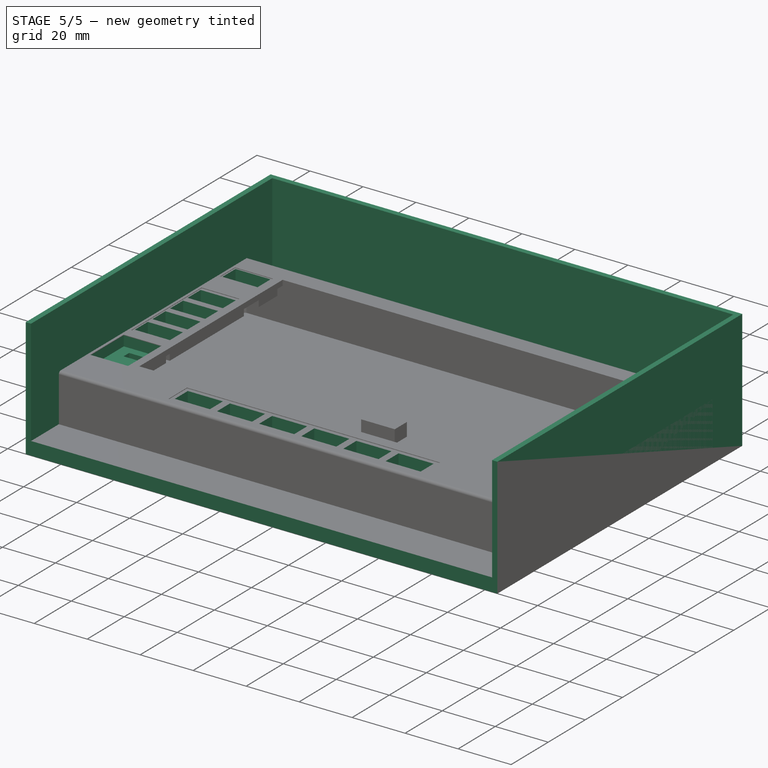
[diagram: stage 5 of 5 — iso view after this stage's code; geometry added in this stage tinted green]
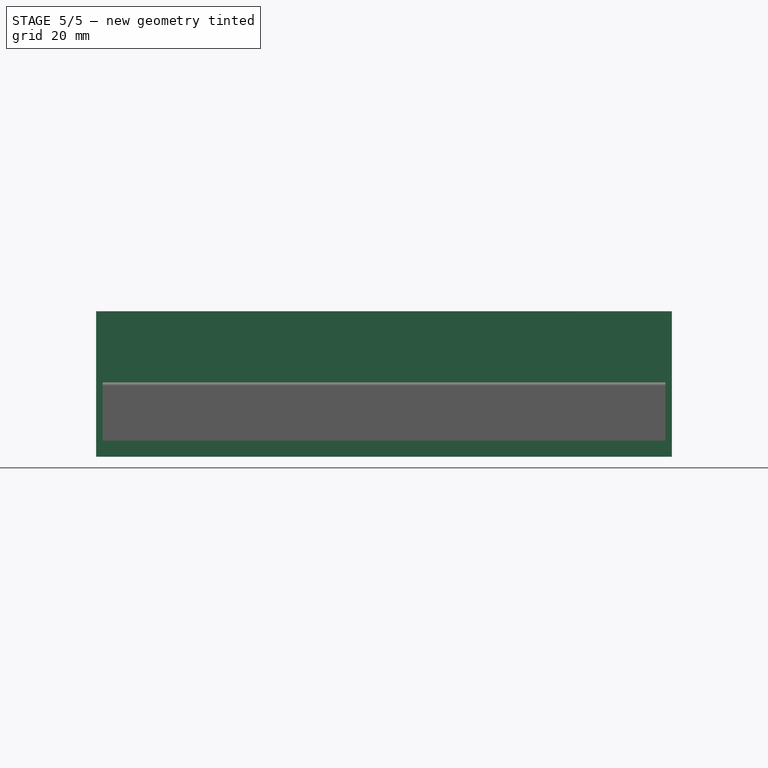
[diagram: stage 5 of 5 — front view after this stage's code; geometry added in this stage tinted green]
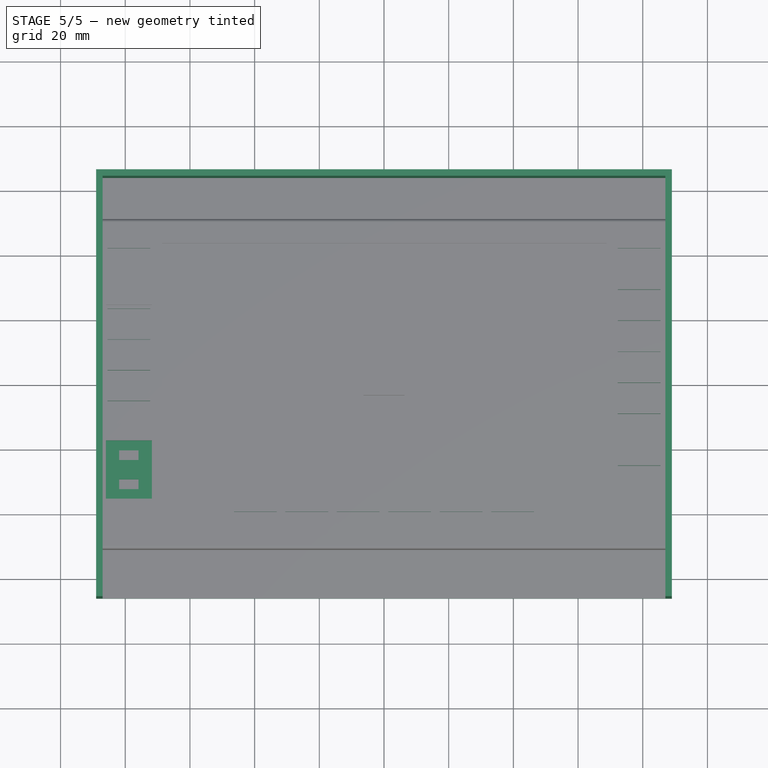
[diagram: stage 5 of 5 — top view after this stage's code; geometry added in this stage tinted green]
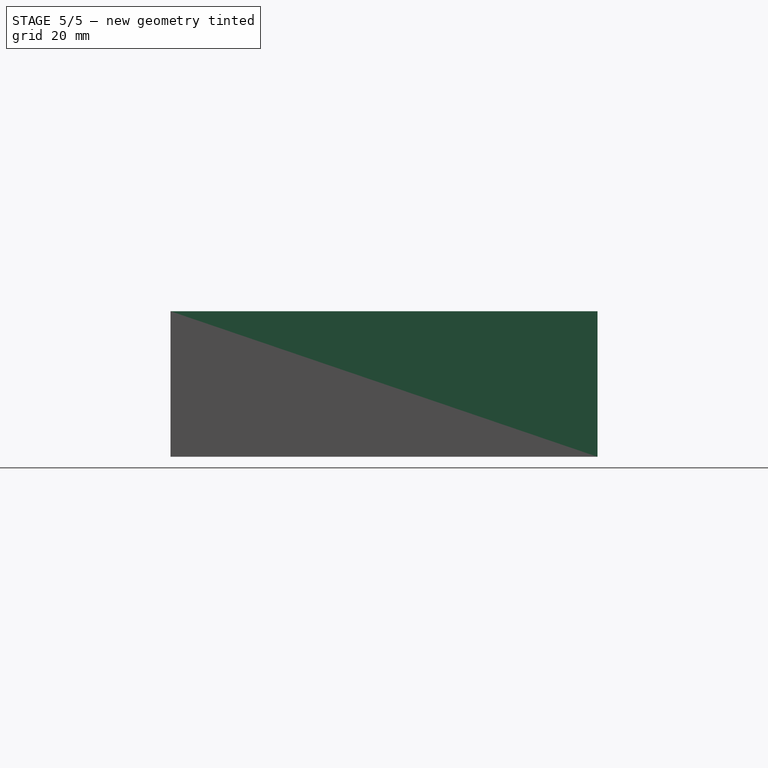
[diagram: stage 5 of 5 — right view after this stage's code; geometry added in this stage tinted green]
FEATURE [Sketcher::SketchObject] Sketch  label="Screen Base Base Sketch"
  ArcFitTolerance = 0
  FullyConstrained = true
  MakeInternals = false
  MapMode = 5
  sketch-geometry (4):
    g0: LineSegment StartX=-89 StartY=66 StartZ=0 EndX=89 EndY=66 EndZ=0
    g1: LineSegment StartX=89 StartY=66 StartZ=0 EndX=89 EndY=-66 EndZ=0
    g2: LineSegment StartX=89 StartY=-66 StartZ=0 EndX=-89 EndY=-66 EndZ=0
    g3: LineSegment StartX=-89 StartY=-66 StartZ=0 EndX=-89 EndY=66 EndZ=0
  constraints (10):
    c: Coincident(g0,g1)
    c: Coincident(g1,g2)
    c: Coincident(g2,g3)
    c: Coincident(g3,g0)
    c: Horizontal(g2)
    c: Vertical(g1)
    c: Symmetric(g0,g2,g-1)
    c: Symmetric(g0,g0,g-2)
    c: DistanceX(g0,g0) = 178
    c: DistanceY(g3,g3) = 132
FEATURE [PartDesign::Pad] Pad  label="Screen Base Base"
  Direction = (0,0,1)
  Length = 45
  Length2 = 10
  Profile = -> Sketch
  ReferenceAxis = -> Sketch [N_Axis]
  Suppressed = false
  Type = 0
FEATURE [Sketcher::SketchObject] Sketch001  label="Screen Base Shell Sketch"
  ArcFitTolerance = 0
  ExternalGeometry = -> [Pad]
  FullyConstrained = true
  MakeInternals = false
  MapMode = 5
  Placement = pos=(0,0,45) rot=(0,0,1;0rad)
  sketch-geometry (4):
    g0: LineSegment StartX=-87 StartY=64 StartZ=0 EndX=87 EndY=64 EndZ=0
    g1: LineSegment StartX=87 StartY=64 StartZ=0 EndX=87 EndY=-66 EndZ=0
    g2: LineSegment StartX=87 StartY=-66 StartZ=0 EndX=-87 EndY=-66 EndZ=0
    g3: LineSegment StartX=-87 StartY=-66 StartZ=0 EndX=-87 EndY=64 EndZ=0
  constraints (11):
    c: Coincident(g0,g1)
    c: Coincident(g1,g2)
    c: Coincident(g2,g3)
    c: Coincident(g3,g0)
    c: Horizontal(g2)
    c: Vertical(g1)
    c: Vertical(g3)
    c: PointOnObject(g1,g-6)
    c: Symmetric(g0,g0,g-2)
    c: DistanceX(g-4,g0) = 2
    c: DistanceY(g0,g-4) = 2
FEATURE [PartDesign::Pocket] Pocket  label="Screen Base Shell"
  BaseFeature = -> Pad
  Direction = (0,0,-1)
  Length = 40
  Length2 = 5
  Profile = -> Sketch001
  ReferenceAxis = -> Sketch001 [N_Axis]
  Suppressed = false
  Type = 0
FEATURE [Sketcher::SketchObject] Sketch007  label="Button Hole Sketch"
  ArcFitTolerance = 0
  ExternalGeometry = -> [Pocket003]
  FullyConstrained = true
  MakeInternals = false
  MapMode = 5
  Placement = pos=(0,0,22.8) rot=(0,0,1;0rad)
  sketch-geometry (149):
    g0: LineSegment StartX=-85.5 StartY=42.056 StartZ=0 EndX=-72.26 EndY=42.056 EndZ=0
    g1: LineSegment StartX=-72.26 StartY=42.056 StartZ=0 EndX=-72.26 EndY=35.056 EndZ=0
    g2: LineSegment StartX=-72.26 StartY=35.056 StartZ=0 EndX=-85.5 EndY=35.056 EndZ=0
    g3: LineSegment StartX=-85.5 StartY=35.056 StartZ=0 EndX=-85.5 EndY=42.056 EndZ=0
    g4: LineSegment [constr] StartX=-78.88 StartY=42.556 StartZ=0 EndX=-78.88 EndY=34.556 EndZ=0
    g5: LineSegment [constr] StartX=-86 StartY=38.556 StartZ=0 EndX=-71.76 EndY=38.556 EndZ=0
    g6: LineSegment [constr] StartX=-86 StartY=15.056 StartZ=0 EndX=-71.76 EndY=15.056 EndZ=0
    g7: LineSegment [constr] StartX=-86 StartY=5.556 StartZ=0 EndX=-71.76 EndY=5.556 EndZ=0
    g8: LineSegment [constr] StartX=-86 StartY=-3.944 StartZ=0 EndX=-71.76 EndY=-3.944 EndZ=0
    g9: LineSegment [constr] StartX=-86 StartY=15.056 StartZ=0 EndX=-86 EndY=24.556 EndZ=0
    g10: LineSegment [constr] StartX=-86 StartY=15.056 StartZ=0 EndX=-86 EndY=5.556 EndZ=0
    g11: LineSegment [constr] StartX=-86 StartY=5.556 StartZ=0 EndX=-86 EndY=-3.944 EndZ=0
    g12: LineSegment [constr] StartX=-86 StartY=-3.944 StartZ=0 EndX=-86 EndY=-13.444 EndZ=0
    g13: LineSegment [constr] StartX=-78.88 StartY=24.556 StartZ=0 EndX=-78.88 EndY=-13.444 EndZ=0
    g14: LineSegment StartX=-85.5 StartY=23.306 StartZ=0 EndX=-72.26 EndY=23.306 EndZ=0
    g15: LineSegment StartX=-72.26 StartY=23.306 StartZ=0 EndX=-72.26 EndY=16.306 EndZ=0
    g16: LineSegment StartX=-72.26 StartY=16.306 StartZ=0 EndX=-85.5 EndY=16.306 EndZ=0
    g17: LineSegment StartX=-85.5 StartY=16.306 StartZ=0 EndX=-85.5 EndY=23.306 EndZ=0
    g18: LineSegment [constr] StartX=-85.5 StartY=23.306 StartZ=0 EndX=-85.5 EndY=24.556 EndZ=0
    g19: LineSegment [constr] StartX=-85.5 StartY=16.306 StartZ=0 EndX=-85.5 EndY=15.056 EndZ=0
    g20: LineSegment StartX=-85.5 StartY=13.806 StartZ=0 EndX=-72.26 EndY=13.806 EndZ=0
    g21: LineSegment StartX=-72.26 StartY=13.806 StartZ=0 EndX=-72.26 EndY=6.806 EndZ=0
    g22: LineSegment StartX=-72.26 StartY=6.806 StartZ=0 EndX=-85.5 EndY=6.806 EndZ=0
    g23: LineSegment StartX=-85.5 StartY=6.806 StartZ=0 EndX=-85.5 EndY=13.806 EndZ=0
    g24: LineSegment [constr] StartX=-72.26 StartY=13.806 StartZ=0 EndX=-72.26 EndY=15.056 EndZ=0
    g25: LineSegment [constr] StartX=-72.26 StartY=6.806 StartZ=0 EndX=-72.26 EndY=5.556 EndZ=0
    g26: LineSegment StartX=-85.5 StartY=4.306 StartZ=0 EndX=-72.26 EndY=4.306 EndZ=0
    g27: LineSegment StartX=-72.26 StartY=4.306 StartZ=0 EndX=-72.26 EndY=-2.694 EndZ=0
    g28: LineSegment StartX=-72.26 StartY=-2.694 StartZ=0 EndX=-85.5 EndY=-2.694 EndZ=0
    g29: LineSegment StartX=-85.5 StartY=-2.694 StartZ=0 EndX=-85.5 EndY=4.306 EndZ=0
    g30: LineSegment [constr] StartX=-85.5 StartY=4.306 StartZ=0 EndX=-85.5 EndY=5.556 EndZ=0
    g31: LineSegment [constr] StartX=-85.5 StartY=-2.694 StartZ=0 EndX=-85.5 EndY=-3.944 EndZ=0
    g32: LineSegment StartX=-85.5 StartY=-5.194 StartZ=0 EndX=-72.26 EndY=-5.194 EndZ=0
    g33: LineSegment StartX=-72.26 StartY=-5.194 StartZ=0 EndX=-72.26 EndY=-12.194 EndZ=0
    g34: LineSegment StartX=-72.26 StartY=-12.194 StartZ=0 EndX=-85.5 EndY=-12.194 EndZ=0
    g35: LineSegment StartX=-85.5 StartY=-12.194 StartZ=0 EndX=-85.5 EndY=-5.194 EndZ=0
    g36: LineSegment [constr] StartX=-72.26 StartY=-5.194 StartZ=0 EndX=-72.26 EndY=-3.944 EndZ=0
    g37: LineSegment [constr] StartX=-72.26 StartY=-12.194 StartZ=0 EndX=-72.26 EndY=-13.444 EndZ=0
    g38: LineSegment [constr] StartX=78.88 StartY=42.556 StartZ=0 EndX=78.88 EndY=34.556 EndZ=0
    g39: LineSegment [constr] StartX=71.76 StartY=38.556 StartZ=0 EndX=86 EndY=38.556 EndZ=0
    g40: LineSegment StartX=72.26 StartY=42.056 StartZ=0 EndX=85.5 EndY=42.056 EndZ=0
    g41: LineSegment StartX=85.5 StartY=42.056 StartZ=0 EndX=85.5 EndY=35.056 EndZ=0
    g42: LineSegment StartX=85.5 StartY=35.056 StartZ=0 EndX=72.26 EndY=35.056 EndZ=0
    g43: LineSegment StartX=72.26 StartY=35.056 StartZ=0 EndX=72.26 EndY=42.056 EndZ=0
    g44: LineSegment [constr] StartX=71.76 StartY=20.956 StartZ=0 EndX=86 EndY=20.956 EndZ=0
    g45: LineSegment [constr] StartX=71.76 StartY=11.356 StartZ=0 EndX=86 EndY=11.356 EndZ=0
    g46: LineSegment [constr] StartX=71.76 StartY=1.756 StartZ=0 EndX=86 EndY=1.756 EndZ=0
    g47: LineSegment [constr] StartX=71.76 StartY=-7.844 StartZ=0 EndX=86 EndY=-7.844 EndZ=0
    g48: LineSegment [constr] StartX=78.88 StartY=30.556 StartZ=0 EndX=78.88 EndY=20.956 EndZ=0
    g49: LineSegment [constr] StartX=78.88 StartY=20.956 StartZ=0 EndX=78.88 EndY=11.356 EndZ=0
    g50: LineSegment [constr] StartX=78.88 StartY=11.356 StartZ=0 EndX=78.88 EndY=1.756 EndZ=0
    g51: LineSegment [constr] StartX=78.88 StartY=1.756 StartZ=0 EndX=78.88 EndY=-7.844 EndZ=0
    g52: LineSegment [constr] StartX=78.88 StartY=-7.844 StartZ=0 EndX=78.88 EndY=-17.444 EndZ=0
    g53: LineSegment StartX=72.26 StartY=29.256 StartZ=0 EndX=85.5 EndY=29.256 EndZ=0
    g54: LineSegment StartX=85.5 StartY=29.256 StartZ=0 EndX=85.5 EndY=22.256 EndZ=0
    g55: LineSegment StartX=85.5 StartY=22.256 StartZ=0 EndX=72.26 EndY=22.256 EndZ=0
    g56: LineSegment StartX=72.26 StartY=22.256 StartZ=0 EndX=72.26 EndY=29.256 EndZ=0
    g57: LineSegment [constr] StartX=72.26 StartY=29.256 StartZ=0 EndX=72.26 EndY=30.556 EndZ=0
    g58: LineSegment [constr] StartX=72.26 StartY=22.256 StartZ=0 EndX=72.26 EndY=20.956 EndZ=0
    g59: LineSegment StartX=72.26 StartY=19.656 StartZ=0 EndX=85.5 EndY=19.656 EndZ=0
    g60: LineSegment StartX=85.5 StartY=19.656 StartZ=0 EndX=85.5 EndY=12.656 EndZ=0
    g61: LineSegment StartX=85.5 StartY=12.656 StartZ=0 EndX=72.26 EndY=12.656 EndZ=0
    g62: LineSegment StartX=72.26 StartY=12.656 StartZ=0 EndX=72.26 EndY=19.656 EndZ=0
    g63: LineSegment [constr] StartX=85.5 StartY=19.656 StartZ=0 EndX=85.5 EndY=20.956 EndZ=0
    g64: LineSegment [constr] StartX=85.5 StartY=12.656 StartZ=0 EndX=85.5 EndY=11.356 EndZ=0
    g65: LineSegment StartX=72.26 StartY=10.056 StartZ=0 EndX=85.5 EndY=10.056 EndZ=0
    g66: LineSegment StartX=85.5 StartY=10.056 StartZ=0 EndX=85.5 EndY=3.056 EndZ=0
    g67: LineSegment StartX=85.5 StartY=3.056 StartZ=0 EndX=72.26 EndY=3.056 EndZ=0
    g68: LineSegment StartX=72.26 StartY=3.056 StartZ=0 EndX=72.26 EndY=10.056 EndZ=0
    g69: LineSegment [constr] StartX=72.26 StartY=10.056 StartZ=0 EndX=72.26 EndY=11.356 EndZ=0
    g70: LineSegment [constr] StartX=72.26 StartY=3.056 StartZ=0 EndX=72.26 EndY=1.756 EndZ=0
    g71: LineSegment StartX=72.26 StartY=0.456 StartZ=0 EndX=85.5 EndY=0.456 EndZ=0
    g72: LineSegment StartX=85.5 StartY=0.456 StartZ=0 EndX=85.5 EndY=-6.544 EndZ=0
    g73: LineSegment StartX=85.5 StartY=-6.544 StartZ=0 EndX=72.26 EndY=-6.544 EndZ=0
    g74: LineSegment StartX=72.26 StartY=-6.544 StartZ=0 EndX=72.26 EndY=0.456 EndZ=0
    g75: LineSegment [constr] StartX=85.5 StartY=0.456 StartZ=0 EndX=85.5 EndY=1.756 EndZ=0
    g76: LineSegment [constr] StartX=85.5 StartY=-6.544 StartZ=0 EndX=85.5 EndY=-7.844 EndZ=0
    g77: LineSegment StartX=72.26 StartY=-9.144 StartZ=0 EndX=85.5 EndY=-9.144 EndZ=0
    g78: LineSegment StartX=85.5 StartY=-9.144 StartZ=0 EndX=85.5 EndY=-16.144 EndZ=0
    g79: LineSegment StartX=85.5 StartY=-16.144 StartZ=0 EndX=72.26 EndY=-16.144 EndZ=0
    g80: LineSegment StartX=72.26 StartY=-16.144 StartZ=0 EndX=72.26 EndY=-9.144 EndZ=0
    g81: LineSegment [constr] StartX=72.26 StartY=-9.144 StartZ=0 EndX=72.26 EndY=-7.844 EndZ=0
    g82: LineSegment [constr] StartX=85.5 StartY=-16.144 StartZ=0 EndX=85.5 EndY=-17.444 EndZ=0
    g83: LineSegment [constr] StartX=78.88 StartY=-24.676 StartZ=0 EndX=78.88 EndY=-32.676 EndZ=0
    g84: LineSegment [constr] StartX=71.76 StartY=-28.676 StartZ=0 EndX=86 EndY=-28.676 EndZ=0
    g85: LineSegment StartX=72.26 StartY=-25.176 StartZ=0 EndX=85.5 EndY=-25.176 EndZ=0
    g86: LineSegment StartX=85.5 StartY=-25.176 StartZ=0 EndX=85.5 EndY=-32.176 EndZ=0
    g87: LineSegment StartX=85.5 StartY=-32.176 StartZ=0 EndX=72.26 EndY=-32.176 EndZ=0
    g88: LineSegment StartX=72.26 StartY=-32.176 StartZ=0 EndX=72.26 EndY=-25.176 EndZ=0
    g89: LineSegment [constr] StartX=-31.8133 StartY=-38 StartZ=0 EndX=-31.8133 EndY=-48 EndZ=0
    g90: LineSegment [constr] StartX=-15.9067 StartY=-38 StartZ=0 EndX=-15.9067 EndY=-48 EndZ=0
    g91: LineSegment [constr] StartX=-2.2e-14 StartY=-38 StartZ=0 EndX=-2.2e-14 EndY=-48 EndZ=0
    g92: LineSegment [constr] StartX=15.9067 StartY=-38 StartZ=0 EndX=15.9067 EndY=-48 EndZ=0
    g93: LineSegment [constr] StartX=31.8133 StartY=-38 StartZ=0 EndX=31.8133 EndY=-48 EndZ=0
    g94: LineSegment [constr] StartX=-31.8133 StartY=-43 StartZ=0 EndX=-47.72 EndY=-43 EndZ=0
    g95: LineSegment [constr] StartX=-31.8133 StartY=-43 StartZ=0 EndX=-15.9067 EndY=-43 EndZ=0
    g96: LineSegment [constr] StartX=-15.9067 StartY=-43 StartZ=0 EndX=-2.13e-14 EndY=-43 EndZ=0
    g97: LineSegment [constr] StartX=-2.13e-14 StartY=-43 StartZ=0 EndX=15.9067 EndY=-43 EndZ=0
    g98: LineSegment [constr] StartX=15.9067 StartY=-43 StartZ=0 EndX=31.8133 EndY=-43 EndZ=0
    g99: LineSegment [constr] StartX=31.8133 StartY=-43 StartZ=0 EndX=47.72 EndY=-43 EndZ=0
    g100: LineSegment StartX=-46.3867 StartY=-39.5 StartZ=0 EndX=-33.1467 EndY=-39.5 EndZ=0
    g101: LineSegment StartX=-33.1467 StartY=-39.5 StartZ=0 EndX=-33.1467 EndY=-46.5 EndZ=0
    g102: LineSegment StartX=-33.1467 StartY=-46.5 StartZ=0 EndX=-46.3867 EndY=-46.5 EndZ=0
    g103: LineSegment StartX=-46.3867 StartY=-46.5 StartZ=0 EndX=-46.3867 EndY=-39.5 EndZ=0
    g104: LineSegment StartX=-30.48 StartY=-39.5 StartZ=0 EndX=-17.24 EndY=-39.5 EndZ=0
    g105: LineSegment StartX=-17.24 StartY=-39.5 StartZ=0 EndX=-17.24 EndY=-46.5 EndZ=0
    g106: LineSegment StartX=-17.24 StartY=-46.5 StartZ=0 EndX=-30.48 EndY=-46.5 EndZ=0
    g107: LineSegment StartX=-30.48 StartY=-46.5 StartZ=0 EndX=-30.48 EndY=-39.5 EndZ=0
    g108: LineSegment StartX=-14.5733 StartY=-39.5 StartZ=0 EndX=-1.33333 EndY=-39.5 EndZ=0
    g109: LineSegment StartX=-1.33333 StartY=-39.5 StartZ=0 EndX=-1.33333 EndY=-46.5 EndZ=0
    g110: LineSegment StartX=-1.33333 StartY=-46.5 StartZ=0 EndX=-14.5733 EndY=-46.5 EndZ=0
    g111: LineSegment StartX=-14.5733 StartY=-46.5 StartZ=0 EndX=-14.5733 EndY=-39.5 EndZ=0
    g112: LineSegment StartX=1.33333 StartY=-39.5 StartZ=0 EndX=14.5733 EndY=-39.5 EndZ=0
    g113: LineSegment StartX=14.5733 StartY=-39.5 StartZ=0 EndX=14.5733 EndY=-46.5 EndZ=0
    g114: LineSegment StartX=14.5733 StartY=-46.5 StartZ=0 EndX=1.33333 EndY=-46.5 EndZ=0
    g115: LineSegment StartX=1.33333 StartY=-46.5 StartZ=0 EndX=1.33333 EndY=-39.5 EndZ=0
    g116: LineSegment StartX=17.24 StartY=-39.5 StartZ=0 EndX=30.48 EndY=-39.5 EndZ=0
    g117: LineSegment StartX=30.48 StartY=-39.5 StartZ=0 EndX=30.48 EndY=-46.5 EndZ=0
    g118: LineSegment StartX=30.48 StartY=-46.5 StartZ=0 EndX=17.24 EndY=-46.5 EndZ=0
    g119: LineSegment StartX=17.24 StartY=-46.5 StartZ=0 EndX=17.24 EndY=-39.5 EndZ=0
    g120: LineSegment StartX=33.1467 StartY=-39.5 StartZ=0 EndX=46.3867 EndY=-39.5 EndZ=0
    g121: LineSegment StartX=46.3867 StartY=-39.5 StartZ=0 EndX=46.3867 EndY=-46.5 EndZ=0
    g122: LineSegment StartX=46.3867 StartY=-46.5 StartZ=0 EndX=33.1467 EndY=-46.5 EndZ=0
    g123: LineSegment StartX=33.1467 StartY=-46.5 StartZ=0 EndX=33.1467 EndY=-39.5 EndZ=0
    g124: LineSegment [constr] StartX=-46.3867 StartY=-39.5 StartZ=0 EndX=-47.72 EndY=-39.5 EndZ=0
    g125: LineSegment [constr] StartX=-33.1467 StartY=-39.5 StartZ=0 EndX=-31.8133 EndY=-39.5 EndZ=0
    g126: LineSegment [constr] StartX=-31.8133 StartY=-46.5 StartZ=0 EndX=-30.48 EndY=-46.5 EndZ=0
    g127: LineSegment [constr] StartX=-17.24 StartY=-46.5 StartZ=0 EndX=-15.9067 EndY=-46.5 EndZ=0
    g128: LineSegment [constr] StartX=-14.5733 StartY=-39.5 StartZ=0 EndX=-15.9067 EndY=-39.5 EndZ=0
    g129: LineSegment [constr] StartX=-1.33333 StartY=-39.5 StartZ=0 EndX=-2.2e-14 EndY=-39.5 EndZ=0
    g130: LineSegment [constr] StartX=1.33333 StartY=-46.5 StartZ=0 EndX=-2.2e-14 EndY=-46.5 EndZ=0
    g131: LineSegment [constr] StartX=14.5733 StartY=-46.5 StartZ=0 EndX=15.9067 EndY=-46.5 EndZ=0
    g132: LineSegment [constr] StartX=17.24 StartY=-39.5 StartZ=0 EndX=15.9067 EndY=-39.5 EndZ=0
    g133: LineSegment [constr] StartX=30.48 StartY=-39.5 StartZ=0 EndX=31.8133 EndY=-39.5 EndZ=0
    g134: LineSegment [constr] StartX=33.1467 StartY=-46.5 StartZ=0 EndX=31.8133 EndY=-46.5 EndZ=0
    g135: LineSegment [constr] StartX=46.3867 StartY=-46.5 StartZ=0 EndX=47.72 EndY=-46.5 EndZ=0
    g136: LineSegment StartX=-81.88 StartY=-20.444 StartZ=0 EndX=-75.88 EndY=-20.444 EndZ=0
    g137: LineSegment StartX=-75.88 StartY=-20.444 StartZ=0 EndX=-75.88 EndY=-23.444 EndZ=0
    g138: LineSegment StartX=-75.88 StartY=-23.444 StartZ=0 EndX=-81.88 EndY=-23.444 EndZ=0
    g139: LineSegment StartX=-81.88 StartY=-23.444 StartZ=0 EndX=-81.88 EndY=-20.444 EndZ=0
    g140: LineSegment StartX=-81.88 StartY=-29.444 StartZ=0 EndX=-75.88 EndY=-29.444 EndZ=0
    g141: LineSegment StartX=-75.88 StartY=-29.444 StartZ=0 EndX=-75.88 EndY=-32.444 EndZ=0
    g142: LineSegment StartX=-75.88 StartY=-32.444 StartZ=0 EndX=-81.88 EndY=-32.444 EndZ=0
    g143: LineSegment StartX=-81.88 StartY=-32.444 StartZ=0 EndX=-81.88 EndY=-29.444 EndZ=0
    g144: LineSegment [constr] StartX=-78.88 StartY=-20.444 StartZ=0 EndX=-78.88 EndY=-17.444 EndZ=0
    g145: LineSegment [constr] StartX=-78.88 StartY=-23.444 StartZ=0 EndX=-78.88 EndY=-29.444 EndZ=0
    g146: LineSegment [constr] StartX=-78.88 StartY=-20.444 StartZ=0 EndX=-78.88 EndY=-23.444 EndZ=0
    g147: LineSegment [constr] StartX=-78.88 StartY=-29.444 StartZ=0 EndX=-78.88 EndY=-32.444 EndZ=0
    g148: LineSegment [constr] StartX=-78.88 StartY=-32.444 StartZ=0 EndX=-78.88 EndY=-35.444 EndZ=0
  constraints (432):
    c: Coincident(g0,g1)
    c: Coincident(g1,g2)
    c: Coincident(g2,g3)
    c: Coincident(g3,g0)
    c: Horizontal(g2)
    c: Vertical(g1)
    c: PointOnObject(g4,g-3)
    c: PointOnObject(g4,g-5)
    c: PointOnObject(g5,g-4)
    c: PointOnObject(g5,g-6)
    c: Symmetric(g-6,g-4,g4)
    c: Symmetric(g-5,g-4,g5)
    c: Symmetric(g0,g0,g4)
    c: Symmetric(g2,g0,g5)
    c: PointOnObject(g6,g-7)
    c: PointOnObject(g6,g-9)
    c: Horizontal(g6)
    c: PointOnObject(g7,g-7)
    c: PointOnObject(g7,g-9)
    c: Horizontal(g7)
    c: PointOnObject(g8,g-7)
    c: PointOnObject(g8,g-9)
    c: Horizontal(g8)
    c: Coincident(g9,g6)
    c: Coincident(g9,g-8)
    c: Coincident(g10,g6)
    c: Coincident(g10,g7)
    c: Coincident(g11,g7)
    c: Coincident(g11,g8)
    c: Coincident(g12,g8)
    c: Coincident(g12,g-10)
    c: Equal(g9,g10)
    c: Equal(g10,g11)
    c: Equal(g11,g12)
    c: PointOnObject(g13,g-8)
    c: PointOnObject(g13,g-10)
    c: Symmetric(g-10,g12,g13)
    c: Coincident(g14,g15)
    c: Coincident(g15,g16)
    c: Coincident(g16,g17)
    c: Coincident(g17,g14)
    c: Horizontal(g16)
    c: Vertical(g15)
    c: Vertical(g17)
    c: Equal(g17,g3)
    c: Equal(g14,g0)
    c: Symmetric(g14,g14,g13)
    c: Coincident(g18,g14)
    c: PointOnObject(g18,g-8)
    c: Vertical(g18)
    c: Coincident(g19,g16)
    c: PointOnObject(g19,g6)
    c: Vertical(g19)
    c: Equal(g19,g18)
    c: Coincident(g20,g21)
    c: Coincident(g21,g22)
    c: Coincident(g22,g23)
    c: Coincident(g23,g20)
    c: Horizontal(g22)
    c: Vertical(g21)
    c: Vertical(g23)
    c: Equal(g20,g14)
    c: Equal(g23,g17)
    c: Symmetric(g20,g20,g13)
    c: Coincident(g24,g20)
    c: PointOnObject(g24,g6)
    c: Vertical(g24)
    c: Coincident(g25,g21)
    c: PointOnObject(g25,g7)
    c: Vertical(g25)
    c: Equal(g25,g24)
    c: Coincident(g26,g27)
    c: Coincident(g27,g28)
    c: Coincident(g28,g29)
    c: Coincident(g29,g26)
    c: Horizontal(g28)
    c: Vertical(g27)
    c: Vertical(g29)
    c: Symmetric(g26,g26,g13)
    c: Equal(g20,g26)
    c: Equal(g29,g23)
    c: Coincident(g30,g26)
    c: PointOnObject(g30,g7)
    c: Vertical(g30)
    c: Coincident(g31,g28)
    c: PointOnObject(g31,g8)
    c: Vertical(g31)
    c: Equal(g31,g30)
    c: Coincident(g32,g33)
    c: Coincident(g33,g34)
    c: Coincident(g34,g35)
    c: Coincident(g35,g32)
    c: Horizontal(g34)
    c: Vertical(g33)
    c: Vertical(g35)
    c: Equal(g32,g26)
    c: Equal(g35,g29)
    c: Symmetric(g32,g32,g13)
    c: Coincident(g36,g32)
    c: PointOnObject(g36,g8)
    c: Vertical(g36)
    c: Coincident(g37,g33)
    c: PointOnObject(g37,g-10)
    c: Vertical(g37)
    c: Equal(g37,g36)
    c: PointOnObject(g38,g-12)
    c: PointOnObject(g38,g-14)
    c: PointOnObject(g39,g-11)
    c: PointOnObject(g39,g-13)
    c: Symmetric(g-12,g-13,g38)
    c: Symmetric(g-12,g-14,g39)
    c: Coincident(g40,g41)
    c: Coincident(g41,g42)
    c: Coincident(g42,g43)
    c: Coincident(g43,g40)
    c: Horizontal(g42)
    c: Vertical(g41)
    c: Equal(g40,g0)
    c: Equal(g1,g43)
    c: Symmetric(g40,g40,g38)
    c: Symmetric(g40,g42,g39)
    c: PointOnObject(g44,g-17)
    c: PointOnObject(g44,g-16)
    c: Horizontal(g44)
    c: PointOnObject(g45,g-17)
    c: PointOnObject(g45,g-16)
    c: Horizontal(g45)
    c: PointOnObject(g46,g-17)
    c: PointOnObject(g46,g-16)
    c: Horizontal(g46)
    c: PointOnObject(g47,g-17)
    c: PointOnObject(g47,g-16)
    c: Horizontal(g47)
    c: PointOnObject(g48,g-15)
    c: PointOnObject(g48,g44)
    c: Symmetric(g-16,g-17,g48)
    c: Coincident(g49,g48)
    c: PointOnObject(g49,g45)
    c: Vertical(g49)
    c: Coincident(g50,g49)
    c: PointOnObject(g50,g46)
    c: Vertical(g50)
    c: Coincident(g51,g50)
    c: PointOnObject(g51,g47)
    c: Vertical(g51)
    c: Coincident(g52,g51)
    c: PointOnObject(g52,g-18)
    c: Vertical(g52)
    c: Equal(g49,g48)
    c: Equal(g48,g50)
    c: Equal(g50,g51)
    c: Equal(g51,g52)
    c: Coincident(g53,g54)
    c: Coincident(g54,g55)
    c: Coincident(g55,g56)
    c: Coincident(g56,g53)
    c: Horizontal(g55)
    c: Vertical(g54)
    c: Vertical(g56)
    c: Symmetric(g53,g53,g48)
    c: Equal(g53,g40)
    c: Equal(g56,g43)
    c: Coincident(g57,g53)
    c: PointOnObject(g57,g-15)
    c: Vertical(g57)
    c: Coincident(g58,g55)
    c: PointOnObject(g58,g44)
    c: Vertical(g58)
    c: Equal(g58,g57)
    c: Coincident(g59,g60)
    c: Coincident(g60,g61)
    c: Coincident(g61,g62)
    c: Coincident(g62,g59)
    c: Horizontal(g61)
    c: Vertical(g60)
    c: Vertical(g62)
    c: Equal(g59,g53)
    c: Equal(g54,g60)
    c: Symmetric(g59,g59,g49)
    c: Coincident(g63,g59)
    c: PointOnObject(g63,g44)
    c: Vertical(g63)
    c: Coincident(g64,g60)
    c: PointOnObject(g64,g45)
    c: Vertical(g64)
    c: Equal(g64,g63)
    c: Coincident(g65,g66)
    c: Coincident(g66,g67)
    c: Coincident(g67,g68)
    c: Coincident(g68,g65)
    c: Horizontal(g67)
    c: Vertical(g66)
    c: Vertical(g68)
    c: Symmetric(g65,g65,g50)
    c: Equal(g65,g59)
    c: Coincident(g69,g65)
    c: PointOnObject(g69,g45)
    c: Vertical(g69)
    c: Coincident(g70,g67)
    c: PointOnObject(g70,g46)
    c: Vertical(g70)
    c: Equal(g70,g69)
    c: Equal(g66,g62)
    c: Coincident(g71,g72)
    c: Coincident(g72,g73)
    c: Coincident(g73,g74)
    c: Coincident(g74,g71)
    c: Horizontal(g73)
    c: Vertical(g72)
    c: Vertical(g74)
    c: Equal(g71,g65)
    c: Equal(g74,g68)
    c: Symmetric(g71,g71,g51)
    c: Coincident(g75,g71)
    c: PointOnObject(g75,g46)
    c: Vertical(g75)
    c: Coincident(g76,g72)
    c: PointOnObject(g76,g47)
    c: Vertical(g76)
    c: Equal(g76,g75)
    c: Coincident(g77,g78)
    c: Coincident(g78,g79)
    c: Coincident(g79,g80)
    c: Coincident(g80,g77)
    c: Horizontal(g79)
    c: Vertical(g78)
    c: Vertical(g80)
    c: Equal(g77,g71)
    c: Equal(g80,g74)
    c: Symmetric(g77,g77,g52)
    c: Coincident(g81,g77)
    c: PointOnObject(g81,g47)
    c: Vertical(g81)
    c: Coincident(g82,g78)
    c: PointOnObject(g82,g-18)
    c: Vertical(g82)
    c: Equal(g82,g81)
    c: PointOnObject(g83,g-19)
    c: PointOnObject(g83,g-22)
    c: PointOnObject(g84,g-20)
    c: PointOnObject(g84,g-21)
    c: Symmetric(g-21,g-20,g83)
    c: Symmetric(g-20,g-22,g84)
    c: Coincident(g85,g86)
    c: Coincident(g86,g87)
    c: Coincident(g87,g88)
    c: Coincident(g88,g85)
    c: Horizontal(g87)
    c: Vertical(g86)
    c: Symmetric(g85,g85,g83)
    c: Symmetric(g85,g87,g84)
    c: Equal(g85,g77)
    c: Equal(g88,g80)
    c: PointOnObject(g89,g-24)
    c: PointOnObject(g89,g-25)
    c: Vertical(g89)
    c: PointOnObject(g90,g-24)
    c: PointOnObject(g90,g-25)
    c: Vertical(g90)
    c: PointOnObject(g91,g-24)
    c: PointOnObject(g91,g-25)
    c: Vertical(g91)
    c: PointOnObject(g92,g-24)
    c: PointOnObject(g92,g-25)
    c: Vertical(g92)
    c: PointOnObject(g93,g-24)
    c: PointOnObject(g93,g-25)
    c: Vertical(g93)
    c: PointOnObject(g94,g89)
    c: PointOnObject(g94,g-23)
    c: Symmetric(g-25,g-24,g94)
    c: Coincident(g95,g94)
    c: PointOnObject(g95,g90)
    c: Horizontal(g95)
    c: Coincident(g96,g95)
    c: PointOnObject(g96,g91)
    c: Horizontal(g96)
    c: Coincident(g97,g96)
    c: PointOnObject(g97,g92)
    c: Horizontal(g97)
    c: Coincident(g98,g97)
    c: PointOnObject(g98,g93)
    c: Horizontal(g98)
    c: Coincident(g99,g98)
    c: PointOnObject(g99,g-26)
    c: Horizontal(g99)
    c: Equal(g99,g98)
    c: Equal(g98,g97)
    c: Equal(g97,g96)
    c: Equal(g96,g95)
    c: Equal(g95,g94)
    c: Coincident(g100,g101)
    c: Coincident(g101,g102)
    c: Coincident(g102,g103)
    c: Coincident(g103,g100)
    c: Horizontal(g100)
    c: Horizontal(g102)
    c: Vertical(g101)
    c: Coincident(g104,g105)
    c: Coincident(g105,g106)
    c: Coincident(g106,g107)
    c: Coincident(g107,g104)
    c: Horizontal(g104)
    c: Horizontal(g106)
    c: Vertical(g105)
    c: Coincident(g108,g109)
    c: Coincident(g109,g110)
    c: Coincident(g110,g111)
    c: Coincident(g111,g108)
    c: Horizontal(g108)
    c: Horizontal(g110)
    c: Vertical(g109)
    c: Coincident(g112,g113)
    c: Coincident(g113,g114)
    c: Coincident(g114,g115)
    c: Coincident(g115,g112)
    c: Horizontal(g112)
    c: Horizontal(g114)
    c: Vertical(g113)
    c: Coincident(g116,g117)
    c: Coincident(g117,g118)
    c: Coincident(g118,g119)
    c: Coincident(g119,g116)
    c: Horizontal(g116)
    c: Horizontal(g118)
    c: Vertical(g117)
    c: Coincident(g120,g121)
    c: Coincident(g121,g122)
    c: Coincident(g122,g123)
    c: Coincident(g123,g120)
    c: Horizontal(g120)
    c: Horizontal(g122)
    c: Vertical(g121)
    c: Symmetric(g100,g102,g94)
    c: Symmetric(g104,g106,g95)
    c: Symmetric(g108,g110,g96)
    c: Symmetric(g112,g114,g97)
    c: Symmetric(g116,g118,g98)
    c: Symmetric(g120,g122,g99)
    c: Equal(g32,g100)
    c: Equal(g100,g104)
    c: Equal(g104,g108)
    c: Equal(g108,g112)
    c: Equal(g112,g116)
    c: Equal(g116,g120)
    c: Equal(g103,g35)
    c: Equal(g35,g107)
    c: Equal(g107,g111)
    c: Equal(g111,g115)
    c: Equal(g115,g119)
    c: Equal(g119,g123)
    c: Coincident(g124,g100)
    c: PointOnObject(g124,g-23)
    c: Horizontal(g124)
    c: Coincident(g125,g100)
    c: PointOnObject(g125,g89)
    c: Horizontal(g125)
    c: Equal(g125,g124)
    c: PointOnObject(g126,g89)
    c: Coincident(g126,g106)
    c: Horizontal(g126)
    c: Coincident(g127,g105)
    c: PointOnObject(g127,g90)
    c: Horizontal(g127)
    c: Equal(g127,g126)
    c: Coincident(g128,g108)
    c: PointOnObject(g128,g90)
    c: Horizontal(g128)
    c: Coincident(g129,g108)
    c: PointOnObject(g129,g91)
    c: Horizontal(g129)
    c: Equal(g129,g128)
    c: Coincident(g130,g114)
    c: PointOnObject(g130,g91)
    c: Horizontal(g130)
    c: Coincident(g131,g113)
    c: PointOnObject(g131,g92)
    c: Horizontal(g131)
    c: Equal(g131,g130)
    c: Coincident(g132,g116)
    c: PointOnObject(g132,g92)
    c: Horizontal(g132)
    c: Coincident(g133,g116)
    c: PointOnObject(g133,g93)
    c: Horizontal(g133)
    c: Equal(g133,g132)
    c: Coincident(g134,g122)
    c: PointOnObject(g134,g93)
    c: Horizontal(g134)
    c: Coincident(g135,g121)
    c: PointOnObject(g135,g-26)
    c: Horizontal(g135)
    c: Equal(g135,g134)
    c: Coincident(g136,g137)
    c: Coincident(g137,g138)
    c: Coincident(g138,g139)
    c: Coincident(g139,g136)
    c: Horizontal(g138)
    c: Vertical(g137)
    c: Vertical(g139)
    c: Coincident(g140,g141)
    c: Coincident(g141,g142)
    c: Coincident(g142,g143)
    c: Coincident(g143,g140)
    c: Horizontal(g140)
    c: Horizontal(g142)
    c: Vertical(g141)
    c: Vertical(g143)
    c: PointOnObject(g144,g136)
    c: PointOnObject(g144,g-28)
    c: Symmetric(g-28,g-29,g144)
    c: Symmetric(g136,g136,g144)
    c: PointOnObject(g145,g138)
    c: PointOnObject(g145,g140)
    c: Vertical(g145)
    c: Coincident(g146,g144)
    c: Coincident(g146,g145)
    c: Vertical(g146)
    c: Coincident(g147,g145)
    c: PointOnObject(g147,g142)
    c: Symmetric(g140,g140,g147)
    c: Coincident(g148,g147)
    c: PointOnObject(g148,g-30)
    c: Vertical(g148)
    c: DistanceY(g144,g144) = 3
    c: DistanceX(g-4,g0) = 0.5
    c: DistanceX(g136,g136) = 6
    c: DistanceY(g139,g139) = 3
    c: DistanceY(g0,g-4) = 0.5
    c: Equal(g140,g138)
    c: Equal(g143,g139)
    c: Equal(g148,g144)
FEATURE [PartDesign::Pocket] Pocket004  label="Button Holes"
  BaseFeature = -> Pocket003
  Direction = (0,0,-1)
  Length = 7
  Length2 = 5
  Profile = -> Sketch007
  ReferenceAxis = -> Sketch007 [N_Axis]
  Suppressed = false
  Type = 0
FEATURE [Sketcher::SketchObject] Sketch008  label="Seek Button Cavity Sketch"
  ArcFitTolerance = 0
  ExternalGeometry = -> [Pocket004]
  FullyConstrained = true
  MakeInternals = false
  MapMode = 5
  Placement = pos=(0,0,22.8) rot=(0,0,1;0rad)
  sketch-geometry (12):
    g0: LineSegment StartX=-86 StartY=-17.444 StartZ=0 EndX=-71.76 EndY=-17.444 EndZ=0
    g1: LineSegment StartX=-71.76 StartY=-17.444 StartZ=0 EndX=-71.76 EndY=-35.444 EndZ=0
    g2: LineSegment StartX=-71.76 StartY=-35.444 StartZ=0 EndX=-86 EndY=-35.444 EndZ=0
    g3: LineSegment StartX=-86 StartY=-35.444 StartZ=0 EndX=-86 EndY=-17.444 EndZ=0
    g4: LineSegment StartX=-81.88 StartY=-29.444 StartZ=0 EndX=-75.88 EndY=-29.444 EndZ=0
    g5: LineSegment StartX=-75.88 StartY=-29.444 StartZ=0 EndX=-75.88 EndY=-32.444 EndZ=0
    g6: LineSegment StartX=-75.88 StartY=-32.444 StartZ=0 EndX=-81.88 EndY=-32.444 EndZ=0
    g7: LineSegment StartX=-81.88 StartY=-32.444 StartZ=0 EndX=-81.88 EndY=-29.444 EndZ=0
    g8: LineSegment StartX=-81.88 StartY=-20.444 StartZ=0 EndX=-75.88 EndY=-20.444 EndZ=0
    g9: LineSegment StartX=-75.88 StartY=-20.444 StartZ=0 EndX=-75.88 EndY=-23.444 EndZ=0
    g10: LineSegment StartX=-75.88 StartY=-23.444 StartZ=0 EndX=-81.88 EndY=-23.444 EndZ=0
    g11: LineSegment StartX=-81.88 StartY=-23.444 StartZ=0 EndX=-81.88 EndY=-20.444 EndZ=0
  constraints (30):
    c: Coincident(g0,g1)
    c: Coincident(g1,g2)
    c: Coincident(g2,g3)
    c: Coincident(g3,g0)
    c: Horizontal(g0)
    c: Horizontal(g2)
    c: Vertical(g1)
    c: Vertical(g3)
    c: Coincident(g0,g-4)
    c: Coincident(g1,g-6)
    c: Coincident(g4,g5)
    c: Coincident(g5,g6)
    c: Coincident(g6,g7)
    c: Coincident(g7,g4)
    c: Horizontal(g4)
    c: Horizontal(g6)
    c: Vertical(g5)
    c: Vertical(g7)
    c: Coincident(g4,g-8)
    c: Coincident(g5,g-10)
    c: Coincident(g8,g9)
    c: Coincident(g9,g10)
    c: Coincident(g10,g11)
    c: Coincident(g11,g8)
    c: Horizontal(g8)
    c: Horizontal(g10)
    c: Vertical(g9)
    c: Vertical(g11)
    c: Coincident(g8,g-12)
    c: Coincident(g9,g-14)
FEATURE [PartDesign::Pocket] Pocket005  label="Seek Button Cavity"
  BaseFeature = -> Pocket004
  Direction = (0,0,-1)
  Length = 3.8
  Length2 = 5
  Profile = -> Sketch008
  ReferenceAxis = -> Sketch008 [N_Axis]
  Suppressed = false
  Type = 0
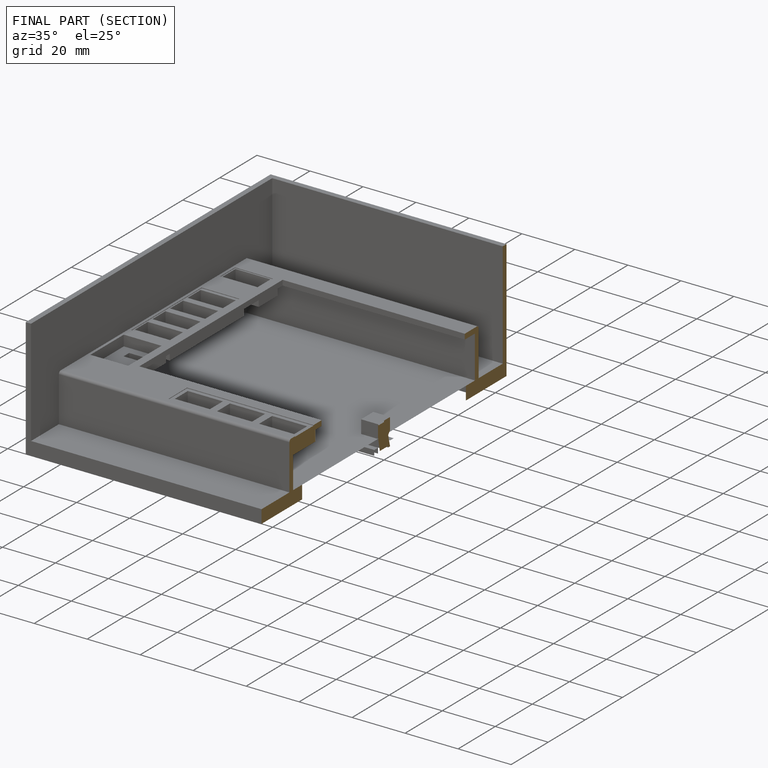
[diagram: finished part — half-section view (interior)]
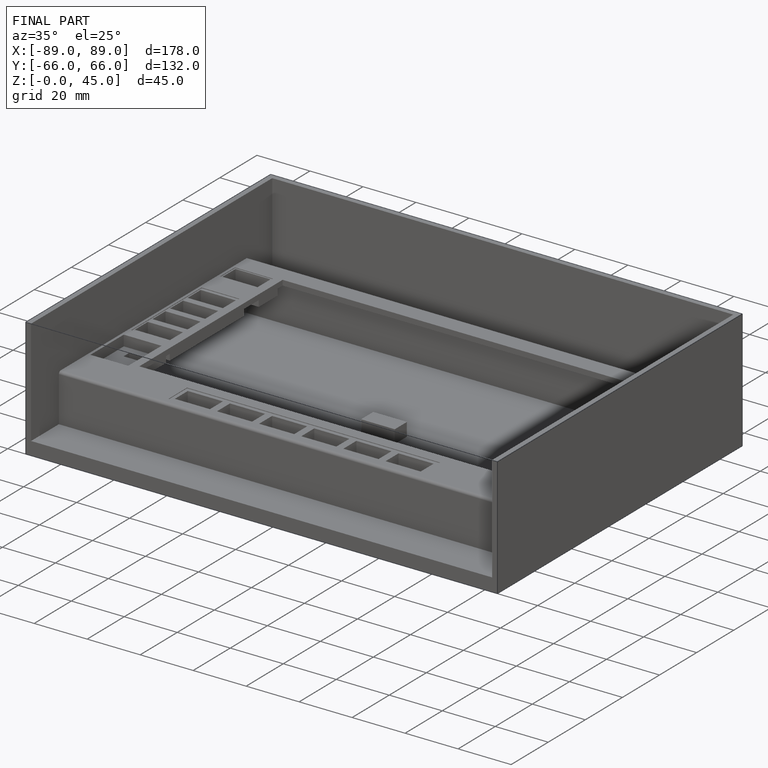
[diagram: finished part — iso view with bounding-box wireframe]
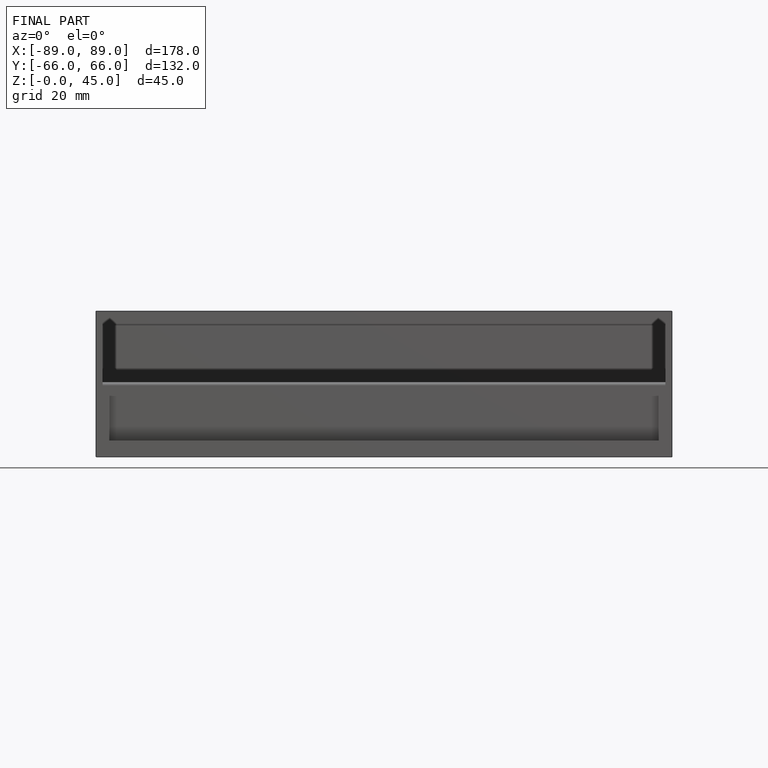
[diagram: finished part — front view with bounding-box wireframe]
